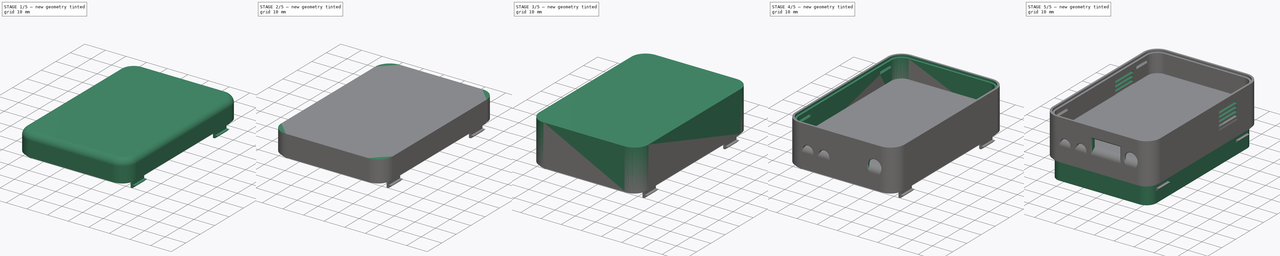
[diagram: build sequence overview — one tinted view per stage of 5, left to right]
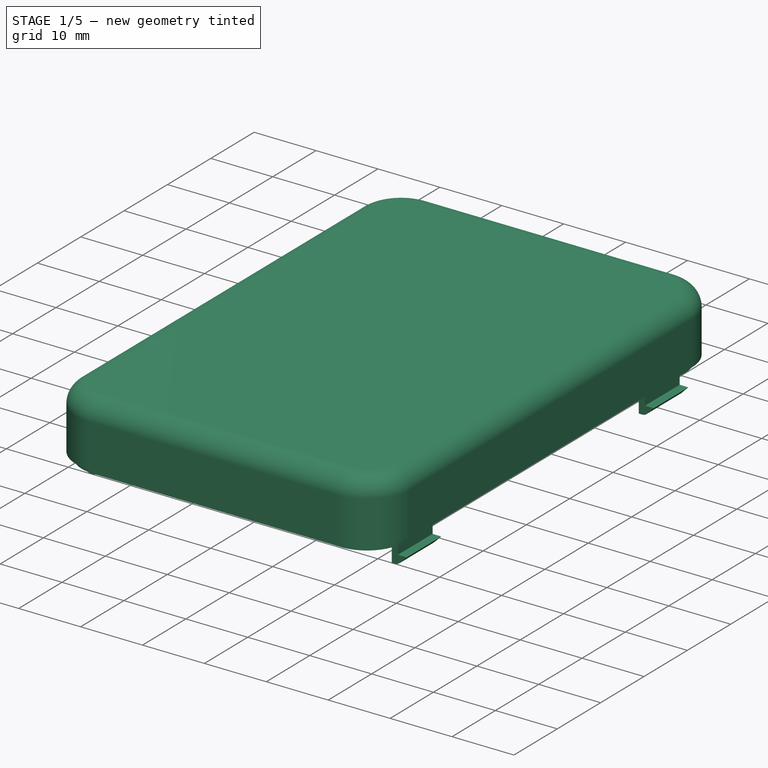
[diagram: stage 1 of 5 — iso view after this stage's code; geometry added in this stage tinted green]
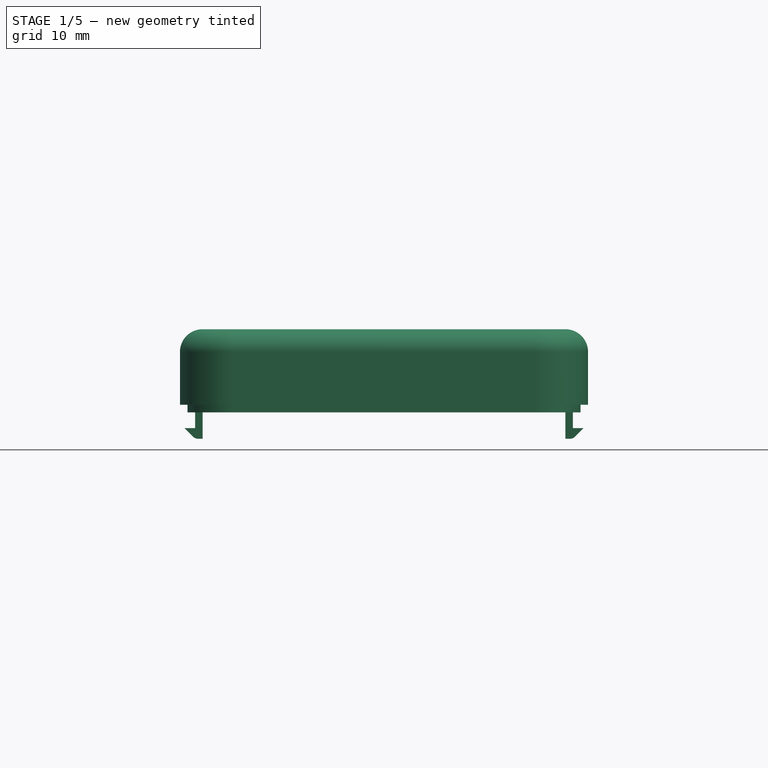
[diagram: stage 1 of 5 — front view after this stage's code; geometry added in this stage tinted green]
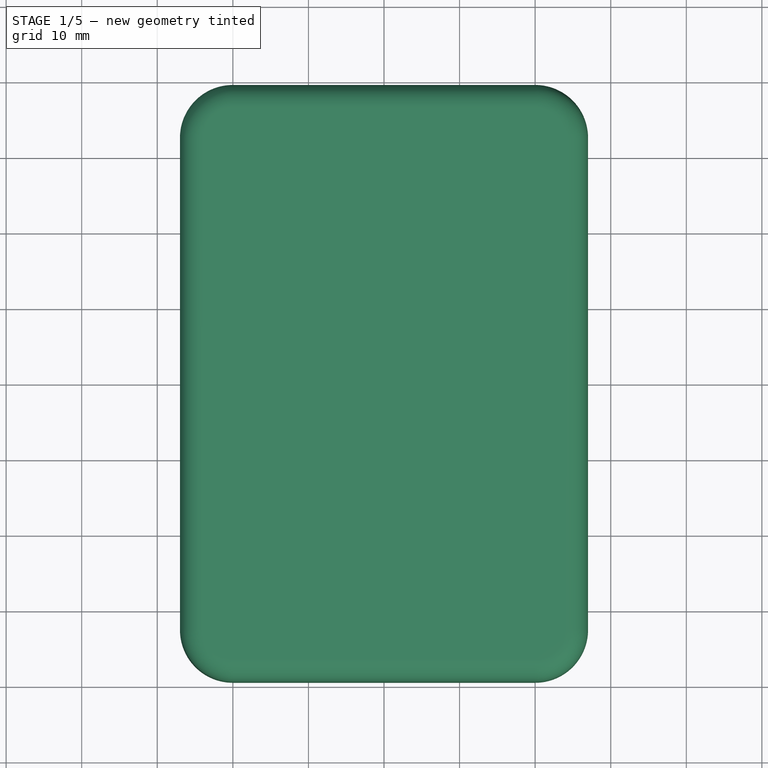
[diagram: stage 1 of 5 — top view after this stage's code; geometry added in this stage tinted green]
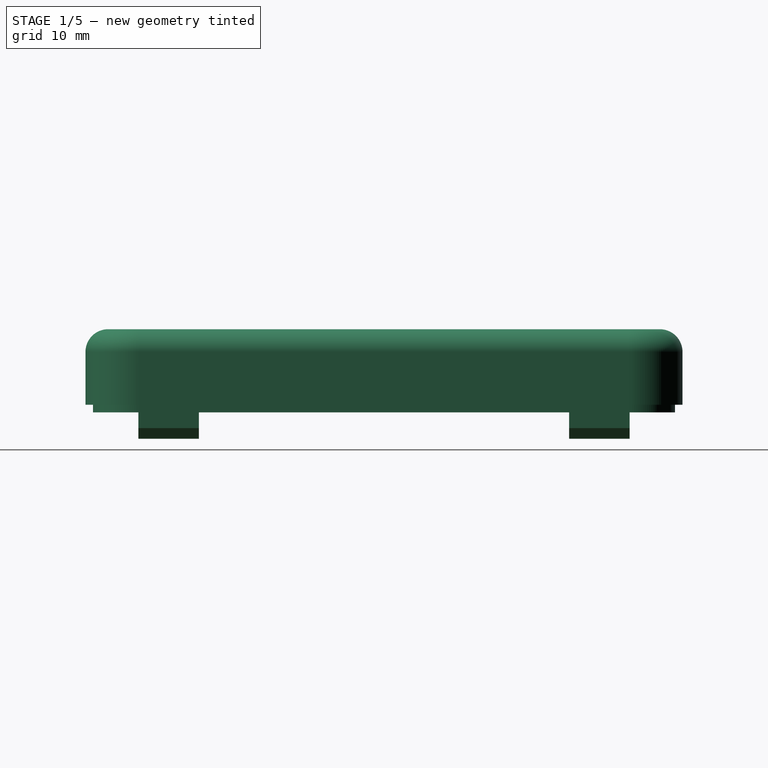
[diagram: stage 1 of 5 — right view after this stage's code; geometry added in this stage tinted green]
FCSTD DOCUMENT  (FreeCAD 1.0R39285 (Git))
Label: Model_Main
License: All rights reserved
LicenseURL: https://en.wikipedia.org/wiki/All_rights_reserved
objects: Sketcher::SketchObject×32, PartDesign::Fillet×31, PartDesign::Pad×16, PartDesign::Pocket×12, Part::Offset2D×10, Part::Extrusion×10, PartDesign::Body×8, PartDesign::FeatureBase×8, Part::Cut×7, PartDesign::Chamfer×2
note: 298 computed .brp shape members not serialized (recipe doc carries the construction recipe); baked Part::Feature solids carry a one-line shape summary decoded from their .brp

FEATURE [Sketcher::SketchObject] Sketch001
  ArcFitTolerance = 1e-06
  AttachmentSupport = -> [XY_Plane002]
  FullyConstrained = true
  MakeInternals = false
  MapMode = 5
  sketch-geometry (12):
    g0: LineSegment StartX=-25 StartY=32.5 StartZ=0 EndX=-25 EndY=-32.5 EndZ=0
    g1: LineSegment StartX=-20 StartY=-37.5 StartZ=0 EndX=20 EndY=-37.5 EndZ=0
    g2: LineSegment StartX=25 StartY=-32.5 StartZ=0 EndX=25 EndY=32.5 EndZ=0
    g3: LineSegment StartX=20 StartY=37.5 StartZ=0 EndX=-20 EndY=37.5 EndZ=0
    g4: ArcOfCircle CenterX=-20 CenterY=32.5 CenterZ=0 NormalX=0 NormalY=0 NormalZ=1 AngleXU=0 Radius=5 StartAngle=1.5708 EndAngle=3.14159
    g5: GeomPoint [constr] X=-25 Y=37.5 Z=0
    g6: ArcOfCircle CenterX=20 CenterY=32.5 CenterZ=0 NormalX=0 NormalY=0 NormalZ=1 AngleXU=0 Radius=5 StartAngle=-9e-16 EndAngle=1.5708
    g7: GeomPoint [constr] X=25 Y=37.5 Z=0
    g8: ArcOfCircle CenterX=-20 CenterY=-32.5 CenterZ=0 NormalX=0 NormalY=0 NormalZ=1 AngleXU=0 Radius=5 StartAngle=3.14159 EndAngle=4.71239
    g9: GeomPoint [constr] X=-25 Y=-37.5 Z=0
    g10: ArcOfCircle CenterX=20 CenterY=-32.5 CenterZ=0 NormalX=0 NormalY=0 NormalZ=1 AngleXU=0 Radius=5 StartAngle=4.71239 EndAngle=6.28319
    g11: GeomPoint [constr] X=25 Y=-37.5 Z=0
  constraints (27):
    c: Vertical(g0)
    c: Vertical(g2)
    c: Horizontal(g1)
    c: Horizontal(g3)
    c: Symmetric(g5,g11,g-1)
    c: DistanceX(g5,g7) = 50
    c: DistanceY(g9,g5) = 75
    c: PointOnObject(g5,g0)
    c: PointOnObject(g5,g3)
    c: Tangent(g0,g4) = -1.5708
    c: Tangent(g3,g4) = -1.5708
    c: PointOnObject(g7,g2)
    c: PointOnObject(g7,g3)
    c: Tangent(g2,g6) = -1.5708
    c: Tangent(g3,g6) = -1.5708
    c: PointOnObject(g9,g0)
    c: PointOnObject(g9,g1)
    c: Tangent(g0,g8) = -1.5708
    c: Tangent(g1,g8) = -1.5708
    c: PointOnObject(g11,g1)
    c: PointOnObject(g11,g2)
    c: Tangent(g1,g10) = -1.5708
    c: Tangent(g2,g10) = -1.5708
    c: Equal(g4,g6)
    c: Equal(g4,g8)
    c: Equal(g4,g10)
    c: Radius(g4) = 5
FEATURE [Part::Offset2D] Offset2D001
  Fill = false
  Intersection = false
  Join = 0
  Mode = 1
  SelfIntersection = false
  Source = -> Sketch001
  Value = 2
FEATURE [Part::Extrusion] Extrude001
  Base = -> Offset2D001
  Dir = (0,0,1)
  DirMode = 2
  FaceMakerClass = Part::FaceMakerBullseye
  FaceMakerMode = 3
  LengthFwd = 10
  LengthRev = 0
  Solid = true
  Symmetric = false
FEATURE [Part::Offset2D] Offset2D002
  Fill = false
  Intersection = false
  Join = 0
  Mode = 1
  SelfIntersection = false
  Source = -> Sketch001
  Value = 0
FEATURE [Part::Extrusion] Extrude002
  Base = -> Offset2D002
  Dir = (0,0,1)
  DirMode = 2
  FaceMakerClass = Part::FaceMakerBullseye
  FaceMakerMode = 3
  LengthFwd = 8
  LengthRev = 0
  Solid = true
  Symmetric = false
FEATURE [Part::Cut] Cut001
  Base = -> Extrude001
  Placement = pos=(0,0,20) rot=(0,0,1;0rad)
  Tool = -> Extrude002
FEATURE [PartDesign::FeatureBase] BaseFeature001
  BaseFeature = -> Cut001
  Suppressed = false
FEATURE [Sketcher::SketchObject] Sketch002
  ArcFitTolerance = 1e-06
  AttachmentSupport = -> [BaseFeature001]
  ExternalGeometry = -> [BaseFeature001]
  FullyConstrained = true
  MakeInternals = false
  MapMode = 5
  Placement = pos=(0,0,0) rot=(1,0,0;3.14159rad)
  sketch-geometry (8):
    g0: LineSegment StartX=-20 StartY=38.5 StartZ=0 EndX=20 EndY=38.5 EndZ=0
    g1: LineSegment StartX=-26 StartY=32.5 StartZ=0 EndX=-26 EndY=-32.5 EndZ=0
    g2: LineSegment StartX=26 StartY=32.5 StartZ=0 EndX=26 EndY=-32.5 EndZ=0
    g3: LineSegment StartX=-20 StartY=-38.5 StartZ=0 EndX=20 EndY=-38.5 EndZ=0
    g4: ArcOfCircle CenterX=-20 CenterY=32.5 CenterZ=0 NormalX=0 NormalY=0 NormalZ=1 AngleXU=0 Radius=6 StartAngle=1.5708 EndAngle=3.14159
    g5: ArcOfCircle CenterX=20 CenterY=32.5 CenterZ=0 NormalX=0 NormalY=0 NormalZ=1 AngleXU=0 Radius=6 StartAngle=-9e-16 EndAngle=1.5708
    g6: ArcOfCircle CenterX=20 CenterY=-32.5 CenterZ=0 NormalX=0 NormalY=0 NormalZ=1 AngleXU=0 Radius=6 StartAngle=4.71239 EndAngle=6.28319
    g7: ArcOfCircle CenterX=-20 CenterY=-32.5 CenterZ=0 NormalX=0 NormalY=0 NormalZ=1 AngleXU=0 Radius=6 StartAngle=3.14159 EndAngle=4.71239
  constraints (26):
    c: Horizontal(g0)
    c: Vertical(g1)
    c: Vertical(g2)
    c: Horizontal(g3)
    c: Horizontal(g1,g-4)
    c: Horizontal(g-7,g2)
    c: Horizontal(g1,g-10)
    c: Horizontal(g-8,g2)
    c: Vertical(g3,g-10)
    c: Vertical(g3,g-9)
    c: Vertical(g-5,g0)
    c: Vertical(g0,g-6)
    c: DistanceX(g1,g-4) = 1
    c: DistanceX(g-7,g2) = 1
    c: DistanceY(g-5,g0) = 1
    c: DistanceY(g3,g-10) = 1
    c: Coincident(g4,g0)
    c: Block(g4)
    c: Coincident(g5,g-6)
    c: Coincident(g5,g0)
    c: Block(g5)
    c: Coincident(g6,g-8)
    c: Coincident(g6,g3)
    c: Block(g6)
    c: Coincident(g7,g1)
    c: Block(g7)
FEATURE [PartDesign::Pad] Pad001
  BaseFeature = -> BaseFeature001
  Direction = (0,0,-1)
  Length = 1
  Length2 = 10
  Profile = -> Sketch002
  ReferenceAxis = -> Sketch002 [N_Axis]
  Refine = true
  Suppressed = false
  Type = 0
FEATURE [PartDesign::Body] Body002  label="Тело001"
  AllowCompound = false
  BaseFeature = -> Cut001
  Group = -> [BaseFeature001,Sketch002,Pad001]
  Origin = -> Origin002
  Tip = -> Pad001
FEATURE [Part::Offset2D] Offset2D003
  Fill = false
  Intersection = false
  Join = 0
  Mode = 1
  SelfIntersection = false
  Source = -> Sketch002
  Value = -1
FEATURE [Part::Extrusion] Extrude003
  Base = -> Offset2D003
  Dir = (0,0,1)
  DirMode = 2
  FaceMakerClass = Part::FaceMakerBullseye
  FaceMakerMode = 3
  LengthFwd = -10
  LengthRev = 0
  Solid = true
  Symmetric = false
FEATURE [Part::Cut] Cut003
  Base = -> Body002
  Tool = -> Extrude003
FEATURE [PartDesign::FeatureBase] BaseFeature003
  BaseFeature = -> Cut003
  Suppressed = false
FEATURE [PartDesign::Fillet] Fillet
  Base = -> BaseFeature003 [Edge4]
  BaseFeature = -> BaseFeature003
  Radius = 3
  Refine = true
  SupportTransform = false
  Suppressed = false
  UseAllEdges = false
FEATURE [PartDesign::Body] Body004  label="Корпус"
  AllowCompound = false
  BaseFeature = -> Cut
  Group = -> [BaseFeature004,Fillet001]
  Origin = -> Origin004
  Tip = -> Fillet001
FEATURE [Sketcher::SketchObject] Sketch005
  ArcFitTolerance = 1e-06
  AttachmentSupport = -> [Fillet]
  ExternalGeometry = -> [Fillet]
  FullyConstrained = true
  MakeInternals = false
  MapMode = 5
  Placement = pos=(0,0,8) rot=(1,0,0;3.14159rad)
  sketch-geometry (16):
    g0: LineSegment StartX=-25 StartY=32.5 StartZ=0 EndX=-25 EndY=24.5 EndZ=0
    g1: LineSegment StartX=-25 StartY=24.5 StartZ=0 EndX=-24 EndY=24.5 EndZ=0
    g2: LineSegment StartX=-24 StartY=24.5 StartZ=0 EndX=-24 EndY=32.5 EndZ=0
    g3: LineSegment StartX=-24 StartY=32.5 StartZ=0 EndX=-25 EndY=32.5 EndZ=0
    g4: LineSegment StartX=25 StartY=32.5 StartZ=0 EndX=24 EndY=32.5 EndZ=0
    g5: LineSegment StartX=24 StartY=32.5 StartZ=0 EndX=24 EndY=24.5 EndZ=0
    g6: LineSegment StartX=24 StartY=24.5 StartZ=0 EndX=25 EndY=24.5 EndZ=0
    g7: LineSegment StartX=25 StartY=24.5 StartZ=0 EndX=25 EndY=32.5 EndZ=0
    g8: LineSegment StartX=-25 StartY=-32.5 StartZ=0 EndX=-24 EndY=-32.5 EndZ=0
    g9: LineSegment StartX=-24 StartY=-32.5 StartZ=0 EndX=-24 EndY=-24.5 EndZ=0
    g10: LineSegment StartX=-24 StartY=-24.5 StartZ=0 EndX=-25 EndY=-24.5 EndZ=0
    g11: LineSegment StartX=-25 StartY=-24.5 StartZ=0 EndX=-25 EndY=-32.5 EndZ=0
    g12: LineSegment StartX=25 StartY=-32.5 StartZ=0 EndX=25 EndY=-24.5 EndZ=0
    g13: LineSegment StartX=25 StartY=-24.5 StartZ=0 EndX=24 EndY=-24.5 EndZ=0
    g14: LineSegment StartX=24 StartY=-24.5 StartZ=0 EndX=24 EndY=-32.5 EndZ=0
    g15: LineSegment StartX=24 StartY=-32.5 StartZ=0 EndX=25 EndY=-32.5 EndZ=0
  constraints (44):
    c: Coincident(g0,g1)
    c: Coincident(g1,g2)
    c: Coincident(g2,g3)
    c: Coincident(g3,g0)
    c: Vertical(g0)
    c: Vertical(g2)
    c: Horizontal(g1)
    c: Horizontal(g3)
    c: Distance(g0,g2) = 1
    c: Distance(g1,g3) = 8
    c: Coincident(g0,g-4)
    c: Coincident(g4,g5)
    c: Coincident(g5,g6)
    c: Coincident(g6,g7)
    c: Coincident(g7,g4)
    c: Horizontal(g4)
    c: Horizontal(g6)
    c: Vertical(g5)
    c: Vertical(g7)
    c: Distance(g5,g7) = 1
    c: Distance(g4,g6) = 8
    c: Coincident(g4,g-7)
    c: Coincident(g8,g9)
    c: Coincident(g9,g10)
    c: Coincident(g10,g11)
    c: Coincident(g11,g8)
    c: Horizontal(g8)
    c: Horizontal(g10)
    c: Vertical(g9)
    c: Vertical(g11)
    c: Distance(g9,g11) = 1
    c: Distance(g8,g10) = 8
    c: Coincident(g8,g-8)
    c: Coincident(g12,g13)
    c: Coincident(g13,g14)
    c: Coincident(g14,g15)
    c: Coincident(g15,g12)
    c: Vertical(g12)
    c: Vertical(g14)
    c: Horizontal(g13)
    c: Horizontal(g15)
    c: Distance(g12,g14) = 1
    c: Distance(g13,g15) = 8
    c: Coincident(g12,g-10)
FEATURE [PartDesign::Pad] Pad002
  BaseFeature = -> Fillet
  Direction = (0,0,-1)
  Length = 12.5
  Length2 = 10
  Profile = -> Sketch005
  ReferenceAxis = -> Sketch005 [N_Axis]
  Refine = true
  Suppressed = false
  Type = 0
FEATURE [Sketcher::SketchObject] Sketch006
  ArcFitTolerance = 1e-06
  AttachmentSupport = -> [Pad002]
  ExternalGeometry = -> [Pad002]
  FullyConstrained = true
  MakeInternals = false
  MapMode = 5
  Placement = pos=(0,32.5,0) rot=(0,0.707107,0.707107;3.14159rad)
  sketch-geometry (6):
    g0: LineSegment StartX=-25 StartY=-4.5 StartZ=0 EndX=-26.4142 EndY=-3.08579 EndZ=0
    g1: LineSegment StartX=-26.4142 StartY=-3.08579 StartZ=0 EndX=-25 EndY=-3.08579 EndZ=0
    g2: LineSegment StartX=-25 StartY=-3.08579 StartZ=0 EndX=-25 EndY=-4.5 EndZ=0
    g3: LineSegment StartX=25 StartY=-4.5 StartZ=0 EndX=26.4142 EndY=-3.08579 EndZ=0
    g4: LineSegment StartX=26.4142 StartY=-3.08579 StartZ=0 EndX=25 EndY=-3.08579 EndZ=0
    g5: LineSegment StartX=25 StartY=-3.08579 StartZ=0 EndX=25 EndY=-4.5 EndZ=0
  constraints (16):
    c: Distance(g0) = 2
    c: Angle(g-1,g0) = 2.35619
    c: Coincident(g0,g-3)
    c: Coincident(g1,g0)
    c: Horizontal(g1)
    c: Coincident(g2,g1)
    c: Coincident(g2,g0)
    c: Vertical(g2)
    c: Distance(g3) = 2
    c: Angle(g-1,g3) = 0.785398
    c: Coincident(g3,g-4)
    c: Coincident(g4,g3)
    c: Horizontal(g4)
    c: Coincident(g5,g4)
    c: Coincident(g5,g3)
    c: Vertical(g5)
FEATURE [PartDesign::Pad] Pad003
  BaseFeature = -> Pad002
  Direction = (0,1,-2e-16)
  Length = 8
  Length2 = 10
  Profile = -> Sketch006
  ReferenceAxis = -> Sketch006 [N_Axis]
  Refine = true
  Reversed = true
  Suppressed = false
  Type = 0
FEATURE [Sketcher::SketchObject] Sketch007
  ArcFitTolerance = 1e-06
  AttachmentSupport = -> [Pad003]
  ExternalGeometry = -> [Pad003]
  FullyConstrained = true
  MakeInternals = false
  MapMode = 5
  Placement = pos=(0,-32.5,0) rot=(1,0,0;1.5708rad)
  sketch-geometry (6):
    g0: LineSegment StartX=25 StartY=-4.5 StartZ=0 EndX=26.4142 EndY=-3.08579 EndZ=0
    g1: LineSegment StartX=26.4142 StartY=-3.08579 StartZ=0 EndX=25 EndY=-3.08579 EndZ=0
    g2: LineSegment StartX=25 StartY=-3.08579 StartZ=0 EndX=25 EndY=-4.5 EndZ=0
    g3: LineSegment StartX=-25 StartY=-4.5 StartZ=0 EndX=-26.4142 EndY=-3.08579 EndZ=0
    g4: LineSegment StartX=-26.4142 StartY=-3.08579 StartZ=0 EndX=-25 EndY=-3.08579 EndZ=0
    g5: LineSegment StartX=-25 StartY=-3.08579 StartZ=0 EndX=-25 EndY=-4.5 EndZ=0
  constraints (16):
    c: Distance(g0) = 2
    c: Angle(g-1,g0) = 0.785398
    c: Coincident(g0,g-3)
    c: Coincident(g1,g0)
    c: Horizontal(g1)
    c: Coincident(g2,g1)
    c: Coincident(g2,g0)
    c: Vertical(g2)
    c: Distance(g3) = 2
    c: Angle(g-1,g3) = 2.35619
    c: Coincident(g3,g-4)
    c: Coincident(g4,g3)
    c: Horizontal(g4)
    c: Coincident(g5,g4)
    c: Coincident(g5,g3)
    c: Vertical(g5)
FEATURE [PartDesign::Pad] Pad004
  BaseFeature = -> Pad003
  Direction = (0,-1,2e-16)
  Length = 8
  Length2 = 10
  Profile = -> Sketch007
  ReferenceAxis = -> Sketch007 [N_Axis]
  Refine = true
  Reversed = true
  Suppressed = false
  Type = 0
FEATURE [Sketcher::SketchObject] Sketch008
  ArcFitTolerance = 1e-06
  AttachmentSupport = -> [Pad004]
  ExternalGeometry = -> [Pad004]
  FullyConstrained = true
  MakeInternals = false
  MapMode = 5
  Placement = pos=(0,0,8) rot=(1,0,0;3.14159rad)
  sketch-geometry (20):
    g0: LineSegment StartX=-22.5 StartY=31.5 StartZ=0 EndX=-22.5 EndY=4.5 EndZ=0
    g1: LineSegment StartX=-18.5 StartY=0.5 StartZ=0 EndX=18.5 EndY=0.5 EndZ=0
    g2: LineSegment StartX=22.5 StartY=4.5 StartZ=0 EndX=22.5 EndY=31.5 EndZ=0
    g3: LineSegment StartX=18.5 StartY=35.5 StartZ=0 EndX=-18.5 EndY=35.5 EndZ=0
    g4: ArcOfCircle CenterX=-18.5 CenterY=31.5 CenterZ=0 NormalX=0 NormalY=0 NormalZ=1 AngleXU=0 Radius=4 StartAngle=1.5708 EndAngle=3.14159
    g5: GeomPoint [constr] X=-22.5 Y=35.5 Z=0
    g6: ArcOfCircle CenterX=18.5 CenterY=31.5 CenterZ=0 NormalX=0 NormalY=0 NormalZ=1 AngleXU=0 Radius=4 StartAngle=0 EndAngle=1.5708
    g7: GeomPoint [constr] X=22.5 Y=35.5 Z=0
    g8: ArcOfCircle CenterX=18.5 CenterY=4.5 CenterZ=0 NormalX=0 NormalY=0 NormalZ=1 AngleXU=0 Radius=4 StartAngle=4.71239 EndAngle=6.28319
    g9: GeomPoint [constr] X=22.5 Y=0.5 Z=0
    g10: ArcOfCircle CenterX=-18.5 CenterY=4.5 CenterZ=0 NormalX=0 NormalY=0 NormalZ=1 AngleXU=0 Radius=4 StartAngle=3.14159 EndAngle=4.71239
    g11: GeomPoint [constr] X=-22.5 Y=0.5 Z=0
    g12: LineSegment StartX=-18.5 StartY=33.5 StartZ=0 EndX=18.5 EndY=33.5 EndZ=0
    g13: LineSegment StartX=20.5 StartY=31.5 StartZ=0 EndX=20.5 EndY=4.5 EndZ=0
    g14: LineSegment StartX=18.5 StartY=2.5 StartZ=0 EndX=-18.5 EndY=2.5 EndZ=0
    g15: LineSegment StartX=-20.5 StartY=4.5 StartZ=0 EndX=-20.5 EndY=31.5 EndZ=0
    g16: ArcOfCircle CenterX=-18.5 CenterY=4.5 CenterZ=0 NormalX=0 NormalY=0 NormalZ=1 AngleXU=0 Radius=2 StartAngle=3.14159 EndAngle=4.71239
    g17: ArcOfCircle CenterX=18.5 CenterY=4.5 CenterZ=0 NormalX=0 NormalY=0 NormalZ=1 AngleXU=0 Radius=2 StartAngle=4.71239 EndAngle=6.28319
    g18: ArcOfCircle CenterX=18.5 CenterY=31.5 CenterZ=0 NormalX=0 NormalY=0 NormalZ=1 AngleXU=0 Radius=2 StartAngle=0 EndAngle=1.5708
    g19: ArcOfCircle CenterX=-17.6292 CenterY=30.6292 CenterZ=0 NormalX=0 NormalY=0 NormalZ=1 AngleXU=0 Radius=3 StartAngle=1.86531 EndAngle=2.84708
  constraints (52):
    c: Vertical(g0)
    c: Vertical(g2)
    c: Horizontal(g1)
    c: Distance(g5,g7) = 45
    c: Distance(g11,g5) = 35
    c: Symmetric(g5,g7,g-2)
    c: PointOnObject(g5,g0)
    c: PointOnObject(g5,g3)
    c: Tangent(g0,g4) = -1.5708
    c: Tangent(g3,g4) = -1.5708
    c: PointOnObject(g7,g2)
    c: PointOnObject(g7,g3)
    c: Tangent(g2,g6) = -1.5708
    c: Tangent(g3,g6) = -1.5708
    c: PointOnObject(g9,g1)
    c: PointOnObject(g9,g2)
    c: Tangent(g1,g8) = -1.5708
    c: Tangent(g2,g8) = -1.5708
    c: PointOnObject(g11,g0)
    c: PointOnObject(g11,g1)
    c: Tangent(g0,g10) = -1.5708
    c: Tangent(g1,g10) = -1.5708
    c: Equal(g4,g6)
    c: Equal(g4,g8)
    c: Equal(g4,g10)
    c: Radius(g4) = 4
    c: DistanceY(g3,g-3) = 2
    c: Horizontal(g12)
    c: Vertical(g13)
    c: Horizontal(g14)
    c: Vertical(g15)
    c: Horizontal(g15,g0)
    c: Horizontal(g13,g2)
    c: Horizontal(g15,g0)
    c: Horizontal(g13,g2)
    c: Vertical(g3,g12)
    c: Vertical(g14,g1)
    c: Vertical(g14,g1)
    c: Coincident(g16,g10)
    c: Coincident(g16,g15)
    c: Coincident(g16,g14)
    c: Coincident(g17,g8)
    c: Coincident(g17,g13)
    c: Coincident(g17,g14)
    c: Coincident(g18,g6)
    c: Coincident(g18,g12)
    c: Coincident(g18,g13)
    c: DistanceY(g12,g3) = 2
    c: Vertical(g12,g3)
    c: Coincident(g19,g12)
    c: Coincident(g19,g15)
    c: Radius(g19) = 3
FEATURE [PartDesign::Pocket] Pocket
  BaseFeature = -> Pad004
  Direction = (0,0,1)
  Length = 1
  Length2 = 5
  Profile = -> Sketch008
  ReferenceAxis = -> Sketch008 [N_Axis]
  Refine = true
  Suppressed = false
  Type = 0
FEATURE [PartDesign::Fillet] Fillet002
  Base = -> Pocket [Edge188]
  BaseFeature = -> Pocket
  Radius = 1
  Refine = true
  SupportTransform = false
  Suppressed = false
  UseAllEdges = false
FEATURE [PartDesign::Fillet] Fillet003
  Base = -> Fillet002 [Edge130]
  BaseFeature = -> Fillet002
  Radius = 1
  Refine = true
  SupportTransform = false
  Suppressed = false
  UseAllEdges = false
FEATURE [PartDesign::Fillet] Fillet004
  Base = -> Fillet003 [Edge135]
  BaseFeature = -> Fillet003
  Radius = 1
  Refine = true
  SupportTransform = false
  Suppressed = false
  UseAllEdges = false
FEATURE [PartDesign::Fillet] Fillet005
  Base = -> Fillet004 [Edge157]
  BaseFeature = -> Fillet004
  Radius = 1
  Refine = true
  SupportTransform = false
  Suppressed = false
  UseAllEdges = false
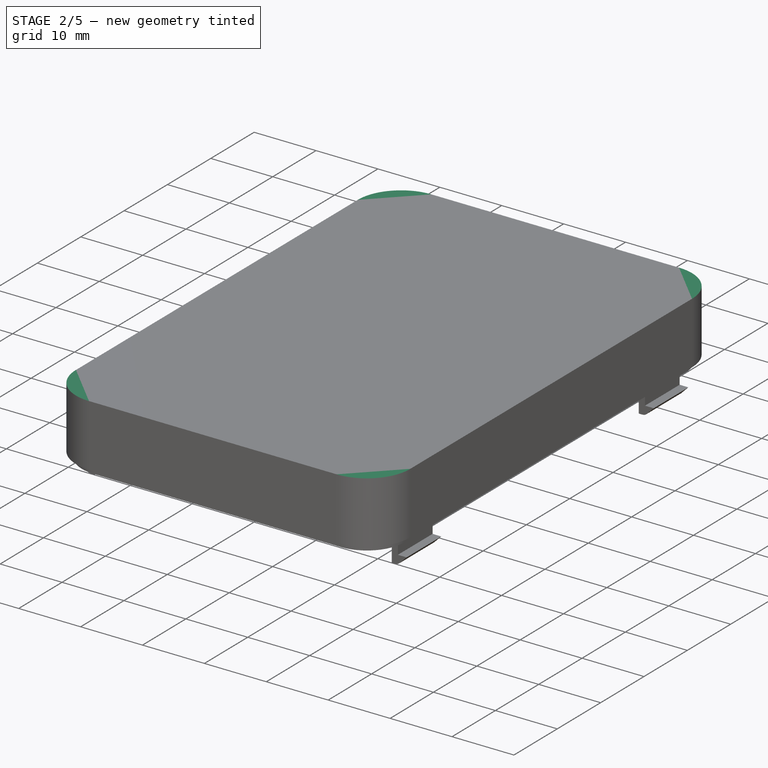
[diagram: stage 2 of 5 — iso view after this stage's code; geometry added in this stage tinted green]
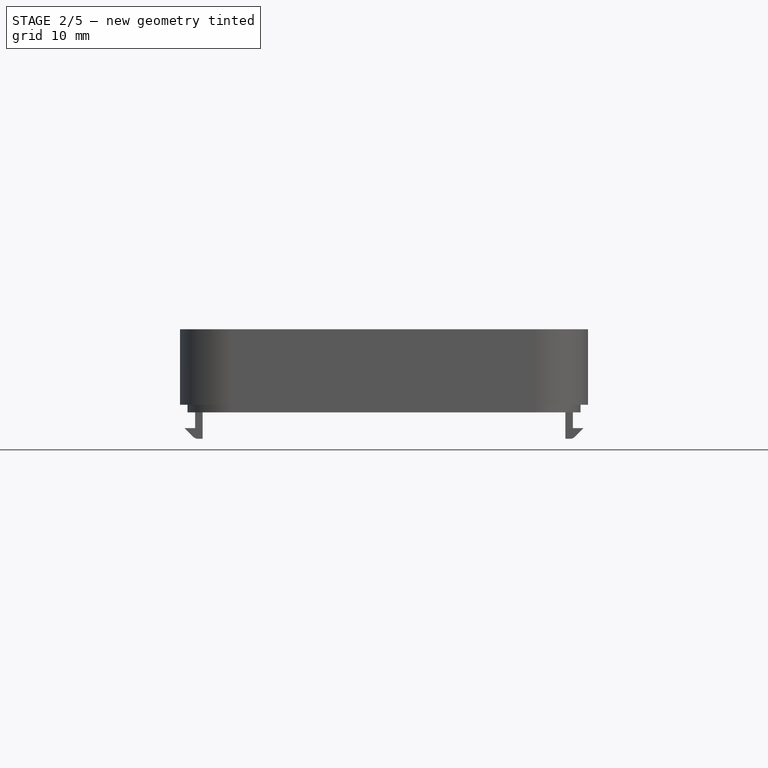
[diagram: stage 2 of 5 — front view after this stage's code; geometry added in this stage tinted green]
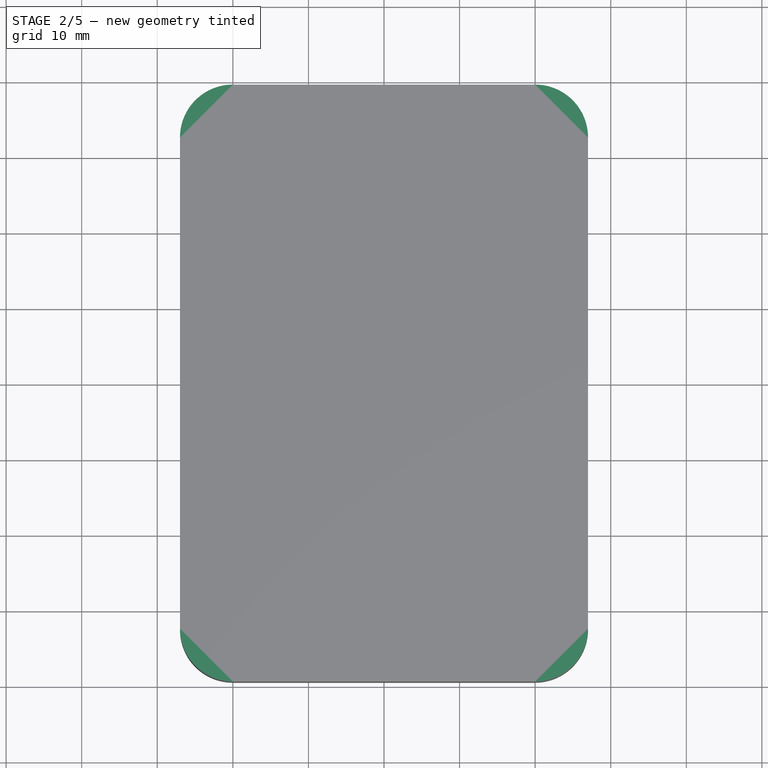
[diagram: stage 2 of 5 — top view after this stage's code; geometry added in this stage tinted green]
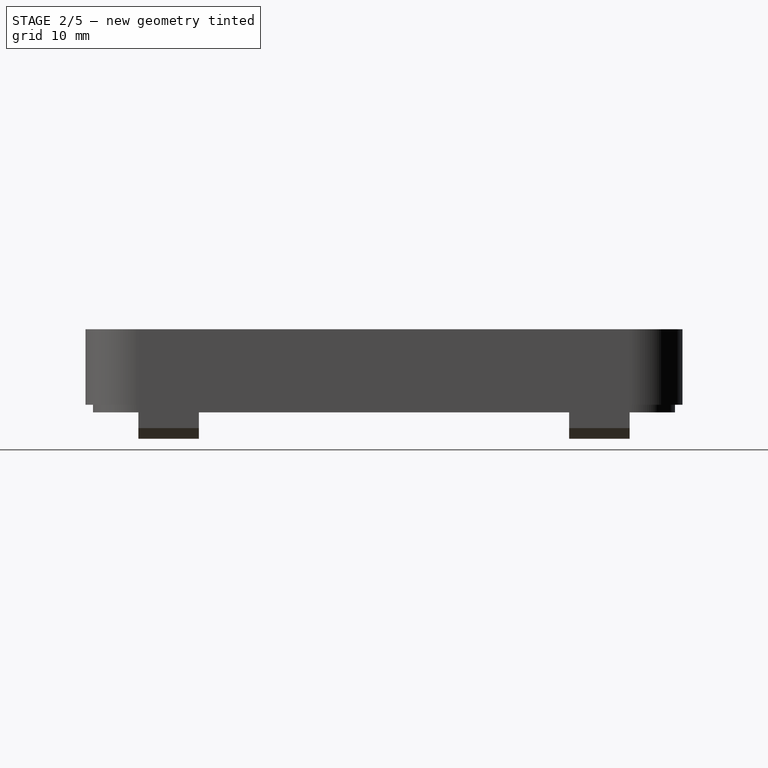
[diagram: stage 2 of 5 — right view after this stage's code; geometry added in this stage tinted green]
FEATURE [PartDesign::Fillet] Fillet006
  Base = -> Fillet005 [Edge29]
  BaseFeature = -> Fillet005
  Radius = 1
  Refine = true
  SupportTransform = false
  Suppressed = false
  UseAllEdges = false
FEATURE [PartDesign::Fillet] Fillet007
  Base = -> Fillet006 [Edge13]
  BaseFeature = -> Fillet006
  Radius = 1
  Refine = true
  SupportTransform = false
  Suppressed = false
  UseAllEdges = false
FEATURE [PartDesign::Fillet] Fillet008
  Base = -> Fillet007 [Edge24]
  BaseFeature = -> Fillet007
  Radius = 1
  Refine = true
  SupportTransform = false
  Suppressed = false
  UseAllEdges = false
FEATURE [PartDesign::Fillet] Fillet009
  Base = -> Fillet008 [Edge8]
  BaseFeature = -> Fillet008
  Radius = 1
  Refine = true
  SupportTransform = false
  Suppressed = false
  UseAllEdges = false
FEATURE [Sketcher::SketchObject] Sketch009
  ArcFitTolerance = 1e-06
  AttachmentSupport = -> [XY_Plane007]
  FullyConstrained = true
  MakeInternals = false
  MapMode = 5
  sketch-geometry (12):
    g0: LineSegment StartX=-25 StartY=32.5 StartZ=0 EndX=-25 EndY=-32.5 EndZ=0
    g1: LineSegment StartX=-20 StartY=-37.5 StartZ=0 EndX=20 EndY=-37.5 EndZ=0
    g2: LineSegment StartX=25 StartY=-32.5 StartZ=0 EndX=25 EndY=32.5 EndZ=0
    g3: LineSegment StartX=20 StartY=37.5 StartZ=0 EndX=-20 EndY=37.5 EndZ=0
    g4: ArcOfCircle CenterX=-20 CenterY=32.5 CenterZ=0 NormalX=0 NormalY=0 NormalZ=1 AngleXU=0 Radius=5 StartAngle=1.5708 EndAngle=3.14159
    g5: GeomPoint [constr] X=-25 Y=37.5 Z=0
    g6: ArcOfCircle CenterX=20 CenterY=32.5 CenterZ=0 NormalX=0 NormalY=0 NormalZ=1 AngleXU=0 Radius=5 StartAngle=-9e-16 EndAngle=1.5708
    g7: GeomPoint [constr] X=25 Y=37.5 Z=0
    g8: ArcOfCircle CenterX=-20 CenterY=-32.5 CenterZ=0 NormalX=0 NormalY=0 NormalZ=1 AngleXU=0 Radius=5 StartAngle=3.14159 EndAngle=4.71239
    g9: GeomPoint [constr] X=-25 Y=-37.5 Z=0
    g10: ArcOfCircle CenterX=20 CenterY=-32.5 CenterZ=0 NormalX=0 NormalY=0 NormalZ=1 AngleXU=0 Radius=5 StartAngle=4.71239 EndAngle=6.28319
    g11: GeomPoint [constr] X=25 Y=-37.5 Z=0
  constraints (27):
    c: Vertical(g0)
    c: Vertical(g2)
    c: Horizontal(g1)
    c: Horizontal(g3)
    c: Symmetric(g5,g11,g-1)
    c: DistanceX(g5,g7) = 50
    c: DistanceY(g9,g5) = 75
    c: PointOnObject(g5,g0)
    c: PointOnObject(g5,g3)
    c: Tangent(g0,g4) = -1.5708
    c: Tangent(g3,g4) = -1.5708
    c: PointOnObject(g7,g2)
    c: PointOnObject(g7,g3)
    c: Tangent(g2,g6) = -1.5708
    c: Tangent(g3,g6) = -1.5708
    c: PointOnObject(g9,g0)
    c: PointOnObject(g9,g1)
    c: Tangent(g0,g8) = -1.5708
    c: Tangent(g1,g8) = -1.5708
    c: PointOnObject(g11,g1)
    c: PointOnObject(g11,g2)
    c: Tangent(g1,g10) = -1.5708
    c: Tangent(g2,g10) = -1.5708
    c: Equal(g4,g6)
    c: Equal(g4,g8)
    c: Equal(g4,g10)
    c: Radius(g4) = 5
FEATURE [Part::Offset2D] Offset2D007
  Fill = false
  Intersection = false
  Join = 0
  Mode = 1
  SelfIntersection = false
  Source = -> Sketch009
  Value = 2
FEATURE [Part::Extrusion] Extrude007
  Base = -> Offset2D007
  Dir = (0,0,1)
  DirMode = 2
  FaceMakerClass = Part::FaceMakerBullseye
  FaceMakerMode = 3
  LengthFwd = 10
  LengthRev = 0
  Solid = true
  Symmetric = false
FEATURE [Part::Offset2D] Offset2D008
  Fill = false
  Intersection = false
  Join = 0
  Mode = 1
  SelfIntersection = false
  Source = -> Sketch009
  Value = 0
FEATURE [Part::Extrusion] Extrude008
  Base = -> Offset2D008
  Dir = (0,0,1)
  DirMode = 2
  FaceMakerClass = Part::FaceMakerBullseye
  FaceMakerMode = 3
  LengthFwd = 8
  LengthRev = 0
  Solid = true
  Symmetric = false
FEATURE [Part::Cut] Cut004
  Base = -> Extrude007
  Placement = pos=(0,0,20) rot=(0,0,1;0rad)
  Tool = -> Extrude008
FEATURE [PartDesign::FeatureBase] BaseFeature005
  BaseFeature = -> Cut004
  Suppressed = false
FEATURE [PartDesign::Pad] Pad005
  BaseFeature = -> BaseFeature005
  Direction = (0,0,-1)
  Length = 1
  Length2 = 10
  Profile = -> Sketch010
  ReferenceAxis = -> Sketch010 [N_Axis]
  Refine = true
  Suppressed = false
  Type = 0
FEATURE [Sketcher::SketchObject] Sketch020
  ArcFitTolerance = 1e-06
  AttachmentSupport = -> [Fillet009]
  ExternalGeometry = -> [Fillet009]
  FullyConstrained = true
  MakeInternals = false
  MapMode = 5
  Placement = pos=(0,39.5,0) rot=(0,0.707107,0.707107;3.14159rad)
  sketch-geometry (6):
    g0: LineSegment StartX=-4.35 StartY=4.95 StartZ=0 EndX=-4.35 EndY=2.05 EndZ=0
    g1: LineSegment StartX=-4.35 StartY=2.05 StartZ=0 EndX=4.35 EndY=2.05 EndZ=0
    g2: LineSegment StartX=4.35 StartY=2.05 StartZ=0 EndX=4.35 EndY=4.95 EndZ=0
    g3: LineSegment StartX=4.35 StartY=4.95 StartZ=0 EndX=-4.35 EndY=4.95 EndZ=0
    g4: LineSegment [constr] StartX=-20 StartY=7 StartZ=0 EndX=-4.35 EndY=4.95 EndZ=0
    g5: LineSegment [constr] StartX=4.35 StartY=2.05 StartZ=0 EndX=20 EndY=2e-16 EndZ=0
  constraints (15):
    c: Coincident(g0,g1)
    c: Coincident(g1,g2)
    c: Coincident(g2,g3)
    c: Coincident(g3,g0)
    c: Vertical(g0)
    c: Vertical(g2)
    c: Horizontal(g1)
    c: Distance(g0,g2) = 8.7
    c: Distance(g1,g3) = 2.9
    c: Symmetric(g2,g0,g-2)
    c: Coincident(g4,g-3)
    c: Coincident(g4,g0)
    c: Coincident(g5,g1)
    c: Coincident(g5,g-4)
    c: Equal(g4,g5)
FEATURE [PartDesign::Pocket] Pocket005
  BaseFeature = -> Fillet009
  Direction = (0,-1,2e-16)
  Length = 5
  Length2 = 5
  Profile = -> Sketch020
  ReferenceAxis = -> Sketch020 [N_Axis]
  Refine = true
  Suppressed = false
  Type = 0
FEATURE [PartDesign::Chamfer] Chamfer001
  Angle = 45
  Base = -> Pocket005 [Edge176,Edge174,Edge172,Edge169]
  BaseFeature = -> Pocket005
  ChamferType = 0
  FlipDirection = false
  Refine = true
  Size = 1
  Size2 = 1
  SupportTransform = false
  Suppressed = false
  UseAllEdges = false
FEATURE [PartDesign::Body] Body007  label="Корпус001"
  AllowCompound = false
  BaseFeature = -> Cut006
  Group = -> [BaseFeature007,Sketch015,Pocket002,Fillet019,Fillet020,Fillet021,Sketch016,Pad009,Sketch017,Pad010,Fillet022,Fillet023,Fillet024,Sketch018,Pocket003,Fillet025,Fillet026,Sketch019,Fillet027,Pocket004,Chamfer,Sketch021,Pocket006,Sketch022,Pocket007,Fillet028,Sketch023,Pocket008,Sketch024,Pocket009,Fillet029,Fillet030,Sketch025,Pad011]
  Origin = -> Origin007
  Tip = -> Pad011
FEATURE [Sketcher::SketchObject] Sketch026
  ArcFitTolerance = 1e-06
  AttachmentSupport = -> [Chamfer001]
  ExternalGeometry = -> [Chamfer001]
  FullyConstrained = true
  MakeInternals = false
  MapMode = 5
  Placement = pos=(0,0,8) rot=(1,0,0;3.14159rad)
  sketch-geometry (12):
    g0: LineSegment StartX=-22.5 StartY=-5.5 StartZ=0 EndX=-22.5 EndY=-31.5 EndZ=0
    g1: LineSegment StartX=-18.5 StartY=-35.5 StartZ=0 EndX=18.5 EndY=-35.5 EndZ=0
    g2: LineSegment StartX=22.5 StartY=-31.5 StartZ=0 EndX=22.5 EndY=-5.5 EndZ=0
    g3: LineSegment StartX=18.5 StartY=-1.5 StartZ=0 EndX=-18.5 EndY=-1.5 EndZ=0
    g4: ArcOfCircle CenterX=-18.5 CenterY=-5.5 CenterZ=0 NormalX=0 NormalY=0 NormalZ=1 AngleXU=0 Radius=4 StartAngle=1.5708 EndAngle=3.14159
    g5: GeomPoint [constr] X=-22.5 Y=-1.5 Z=0
    g6: ArcOfCircle CenterX=18.5 CenterY=-5.5 CenterZ=0 NormalX=0 NormalY=0 NormalZ=1 AngleXU=0 Radius=4 StartAngle=0 EndAngle=1.5708
    g7: GeomPoint [constr] X=22.5 Y=-1.5 Z=0
    g8: ArcOfCircle CenterX=18.5 CenterY=-31.5 CenterZ=0 NormalX=0 NormalY=0 NormalZ=1 AngleXU=0 Radius=4 StartAngle=4.71239 EndAngle=6.28319
    g9: GeomPoint [constr] X=22.5 Y=-35.5 Z=0
    g10: ArcOfCircle CenterX=-18.5 CenterY=-31.5 CenterZ=0 NormalX=0 NormalY=0 NormalZ=1 AngleXU=0 Radius=4 StartAngle=3.14159 EndAngle=4.71239
    g11: GeomPoint [constr] X=-22.5 Y=-35.5 Z=0
  constraints (27):
    c: Vertical(g0)
    c: Vertical(g2)
    c: Horizontal(g1)
    c: Symmetric(g5,g7,g-2)
    c: DistanceY(g-6,g11) = 2
    c: Vertical(g5,g-5)
    c: DistanceY(g5,g-7) = 2
    c: PointOnObject(g5,g0)
    c: PointOnObject(g5,g3)
    c: Tangent(g0,g4) = -1.5708
    c: Tangent(g3,g4) = -1.5708
    c: PointOnObject(g7,g2)
    c: PointOnObject(g7,g3)
    c: Tangent(g2,g6) = -1.5708
    c: Tangent(g3,g6) = -1.5708
    c: PointOnObject(g9,g1)
    c: PointOnObject(g9,g2)
    c: Tangent(g1,g8) = -1.5708
    c: Tangent(g2,g8) = -1.5708
    c: PointOnObject(g11,g0)
    c: PointOnObject(g11,g1)
    c: Tangent(g0,g10) = -1.5708
    c: Tangent(g1,g10) = -1.5708
    c: Equal(g4,g10)
    c: Equal(g10,g8)
    c: Equal(g8,g6)
    c: Radius(g4) = 4
FEATURE [PartDesign::Pocket] Pocket010
  BaseFeature = -> Chamfer001
  Direction = (0,0,1)
  Length = 1
  Length2 = 5
  Profile = -> Sketch026
  ReferenceAxis = -> Sketch026 [N_Axis]
  Refine = true
  Suppressed = false
  Type = 0
FEATURE [Sketcher::SketchObject] Sketch027
  ArcFitTolerance = 1e-06
  AttachmentSupport = -> [Pocket010]
  ExternalGeometry = -> [Pocket010]
  FullyConstrained = true
  MakeInternals = false
  MapMode = 5
  Placement = pos=(0,0,8) rot=(1,0,0;3.14159rad)
  sketch-geometry (12):
    g0: LineSegment StartX=-19.5 StartY=30.5 StartZ=0 EndX=-19.5 EndY=5.5 EndZ=0
    g1: LineSegment StartX=-17.5 StartY=3.5 StartZ=0 EndX=17.5 EndY=3.5 EndZ=0
    g2: LineSegment StartX=19.5 StartY=5.5 StartZ=0 EndX=19.5 EndY=30.5 EndZ=0
    g3: LineSegment StartX=17.5 StartY=32.5 StartZ=0 EndX=-17.5 EndY=32.5 EndZ=0
    g4: ArcOfCircle CenterX=-17.5 CenterY=30.5 CenterZ=0 NormalX=0 NormalY=0 NormalZ=1 AngleXU=0 Radius=2 StartAngle=1.5708 EndAngle=3.14159
    g5: GeomPoint [constr] X=-19.5 Y=32.5 Z=0
    g6: ArcOfCircle CenterX=17.5 CenterY=30.5 CenterZ=0 NormalX=0 NormalY=0 NormalZ=1 AngleXU=0 Radius=2 StartAngle=5e-16 EndAngle=1.5708
    g7: GeomPoint [constr] X=19.5 Y=32.5 Z=0
    g8: ArcOfCircle CenterX=17.5 CenterY=5.5 CenterZ=0 NormalX=0 NormalY=0 NormalZ=1 AngleXU=0 Radius=2 StartAngle=4.71239 EndAngle=6.28319
    g9: GeomPoint [constr] X=19.5 Y=3.5 Z=0
    g10: ArcOfCircle CenterX=-17.5 CenterY=5.5 CenterZ=0 NormalX=0 NormalY=0 NormalZ=1 AngleXU=0 Radius=2 StartAngle=3.14159 EndAngle=4.71239
    g11: GeomPoint [constr] X=-19.5 Y=3.5 Z=0
  constraints (27):
    c: Vertical(g0)
    c: Vertical(g2)
    c: Horizontal(g1)
    c: Symmetric(g5,g7,g-2)
    c: PointOnObject(g5,g0)
    c: PointOnObject(g5,g3)
    c: Tangent(g0,g4) = -1.5708
    c: Tangent(g3,g4) = -1.5708
    c: PointOnObject(g7,g2)
    c: PointOnObject(g7,g3)
    c: Tangent(g2,g6) = -1.5708
    c: Tangent(g3,g6) = -1.5708
    c: PointOnObject(g9,g1)
    c: PointOnObject(g9,g2)
    c: Tangent(g1,g8) = -1.5708
    c: Tangent(g2,g8) = -1.5708
    c: PointOnObject(g11,g0)
    c: PointOnObject(g11,g1)
    c: Tangent(g0,g10) = -1.5708
    c: Tangent(g1,g10) = -1.5708
    c: DistanceX(g-4,g0) = 1
    c: Equal(g4,g6)
    c: Equal(g4,g8)
    c: Equal(g4,g10)
    c: Radius(g4) = 2
    c: DistanceY(g3,g-3) = 1
    c: DistanceY(g-5,g1) = 1
FEATURE [PartDesign::Pocket] Pocket011
  BaseFeature = -> Pocket010
  Direction = (0,0,1)
  Length = 1
  Length2 = 5
  Profile = -> Sketch027
  ReferenceAxis = -> Sketch027 [N_Axis]
  Refine = true
  Suppressed = false
  Type = 0
FEATURE [Sketcher::SketchObject] Sketch029
  ArcFitTolerance = 1e-06
  AttachmentSupport = -> [Pocket011]
  ExternalGeometry = -> [Pocket011]
  FullyConstrained = true
  MakeInternals = false
  MapMode = 5
  Placement = pos=(0,-33.5,0) rot=(1,0,0;1.5708rad)
  sketch-geometry (4):
    g0: LineSegment StartX=-18.5 StartY=8 StartZ=0 EndX=18.5 EndY=8 EndZ=0
    g1: LineSegment StartX=18.5 StartY=8 StartZ=0 EndX=18.5 EndY=8.3 EndZ=0
    g2: LineSegment StartX=18.5 StartY=8.3 StartZ=0 EndX=-18.5 EndY=8.3 EndZ=0
    g3: LineSegment StartX=-18.5 StartY=8.3 StartZ=0 EndX=-18.5 EndY=8 EndZ=0
  constraints (10):
    c: Coincident(g0,g1)
    c: Coincident(g1,g2)
    c: Coincident(g2,g3)
    c: Coincident(g3,g0)
    c: Horizontal(g2)
    c: Vertical(g1)
    c: Vertical(g3)
    c: Coincident(g0,g-3)
    c: DistanceY(g1,g1) = 0.3
    c: Coincident(g0,g-3)
FEATURE [PartDesign::Pad] Pad012
  BaseFeature = -> Pocket011
  Direction = (0,-1,2e-16)
  Length = 0.7
  Length2 = 10
  Profile = -> Sketch029
  ReferenceAxis = -> Sketch029 [N_Axis]
  Refine = true
  Suppressed = false
  Type = 0
FEATURE [Sketcher::SketchObject] Sketch030
  ArcFitTolerance = 1e-06
  AttachmentSupport = -> [Pad012]
  ExternalGeometry = -> [Pad012]
  FullyConstrained = true
  MakeInternals = false
  MapMode = 5
  Placement = pos=(0,-2.5,0) rot=(0,0.707107,0.707107;3.14159rad)
  sketch-geometry (4):
    g0: LineSegment StartX=18.5 StartY=8 StartZ=0 EndX=18.5 EndY=8.3 EndZ=0
    g1: LineSegment StartX=18.5 StartY=8.3 StartZ=0 EndX=-18.5 EndY=8.3 EndZ=0
    g2: LineSegment StartX=-18.5 StartY=8.3 StartZ=0 EndX=-18.5 EndY=8 EndZ=0
    g3: LineSegment StartX=-18.5 StartY=8 StartZ=0 EndX=18.5 EndY=8 EndZ=0
  constraints (10):
    c: Coincident(g0,g1)
    c: Coincident(g1,g2)
    c: Coincident(g2,g3)
    c: Coincident(g3,g0)
    c: Vertical(g0)
    c: Vertical(g2)
    c: Horizontal(g1)
    c: Coincident(g0,g-3)
    c: DistanceY(g2,g2) = 0.3
    c: Coincident(g2,g-3)
FEATURE [PartDesign::Pad] Pad013
  BaseFeature = -> Pad012
  Direction = (0,1,-2e-16)
  Length = 0.7
  Length2 = 10
  Profile = -> Sketch030
  ReferenceAxis = -> Sketch030 [N_Axis]
  Refine = true
  Suppressed = false
  Type = 0
FEATURE [Sketcher::SketchObject] Sketch031
  ArcFitTolerance = 1e-06
  AttachmentSupport = -> [Pad013]
  ExternalGeometry = -> [Pad013]
  FullyConstrained = true
  MakeInternals = false
  MapMode = 5
  Placement = pos=(-20.5,0,0) rot=(0.57735,-0.57735,-0.57735;2.0944rad)
  sketch-geometry (4):
    g0: LineSegment StartX=31.5 StartY=8 StartZ=0 EndX=31.5 EndY=8.3 EndZ=0
    g1: LineSegment StartX=31.5 StartY=8.3 StartZ=0 EndX=4.5 EndY=8.3 EndZ=0
    g2: LineSegment StartX=4.5 StartY=8.3 StartZ=0 EndX=4.5 EndY=8 EndZ=0
    g3: LineSegment StartX=4.5 StartY=8 StartZ=0 EndX=31.5 EndY=8 EndZ=0
  constraints (10):
    c: Coincident(g0,g1)
    c: Coincident(g1,g2)
    c: Coincident(g2,g3)
    c: Coincident(g3,g0)
    c: Vertical(g0)
    c: Vertical(g2)
    c: Horizontal(g1)
    c: Coincident(g0,g-3)
    c: DistanceY(g2,g2) = 0.3
    c: Coincident(g2,g-3)
FEATURE [PartDesign::Pad] Pad014
  BaseFeature = -> Pad013
  Direction = (-1,0,0)
  Length = 0.7
  Length2 = 10
  Profile = -> Sketch031
  ReferenceAxis = -> Sketch031 [N_Axis]
  Refine = true
  Suppressed = false
  Type = 0
FEATURE [Sketcher::SketchObject] Sketch032
  ArcFitTolerance = 1e-06
  AttachmentSupport = -> [Pad014]
  ExternalGeometry = -> [Pad014]
  FullyConstrained = true
  MakeInternals = false
  MapMode = 5
  Placement = pos=(20.5,0,0) rot=(0.57735,0.57735,0.57735;2.0944rad)
  sketch-geometry (4):
    g0: LineSegment StartX=-31.5 StartY=8 StartZ=0 EndX=-4.5 EndY=8 EndZ=0
    g1: LineSegment StartX=-4.5 StartY=8 StartZ=0 EndX=-4.5 EndY=8.3 EndZ=0
    g2: LineSegment StartX=-4.5 StartY=8.3 StartZ=0 EndX=-31.5 EndY=8.3 EndZ=0
    g3: LineSegment StartX=-31.5 StartY=8.3 StartZ=0 EndX=-31.5 EndY=8 EndZ=0
  constraints (10):
    c: Coincident(g0,g1)
    c: Coincident(g1,g2)
    c: Coincident(g2,g3)
    c: Coincident(g3,g0)
    c: Horizontal(g2)
    c: Vertical(g1)
    c: Vertical(g3)
    c: Coincident(g0,g-3)
    c: DistanceY(g1,g1) = 0.3
    c: Coincident(g0,g-3)
FEATURE [PartDesign::Pad] Pad015
  BaseFeature = -> Pad014
  Direction = (1,0,0)
  Length = 0.7
  Length2 = 10
  Profile = -> Sketch032
  ReferenceAxis = -> Sketch032 [N_Axis]
  Refine = true
  Suppressed = false
  Type = 0
FEATURE [PartDesign::Body] Body003  label="Крышка"
  AllowCompound = false
  BaseFeature = -> Cut003
  Group = -> [BaseFeature003,Fillet,Sketch005,Pad002,Sketch006,Pad003,Sketch007,Pad004,Sketch008,Pocket,Fillet002,Fillet003,Fillet004,Fillet005,Fillet006,Fillet007,Fillet008,Fillet009,Sketch020,Pocket005,Chamfer001,Sketch026,Pocket010,Sketch027,Pocket011,Sketch029,Pad012,Sketch030,Pad013,Sketch031,Pad014,Sketch032,Pad015]
  Origin = -> Origin003
  Placement = pos=(0,0,20) rot=(0,0,1;0rad)
  Tip = -> Pad015
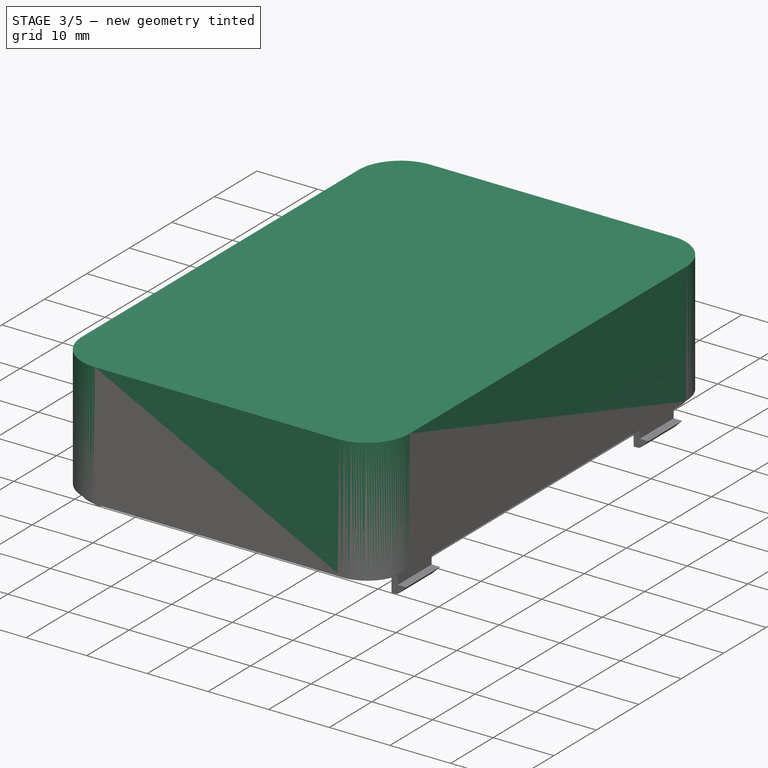
[diagram: stage 3 of 5 — iso view after this stage's code; geometry added in this stage tinted green]
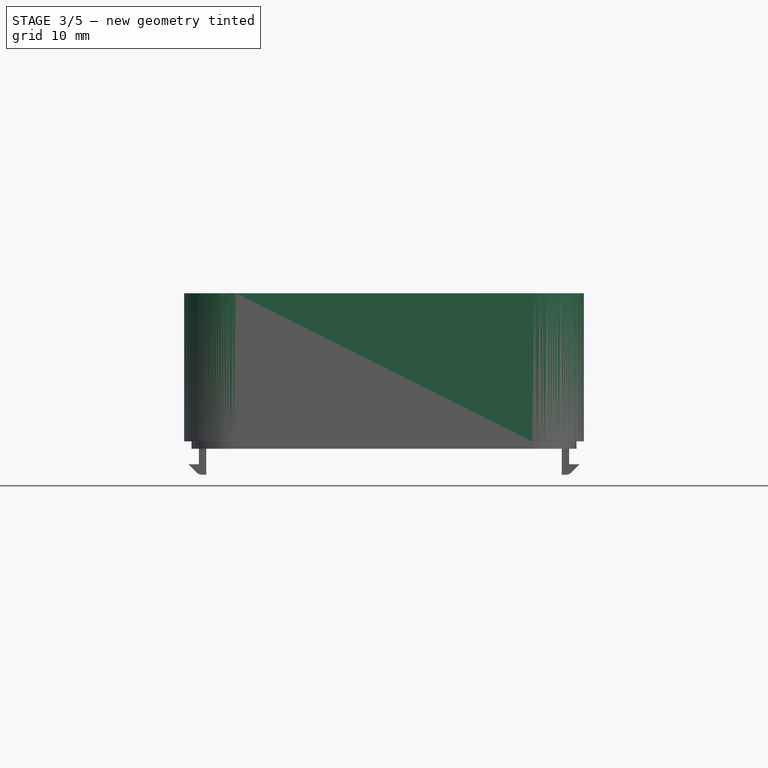
[diagram: stage 3 of 5 — front view after this stage's code; geometry added in this stage tinted green]
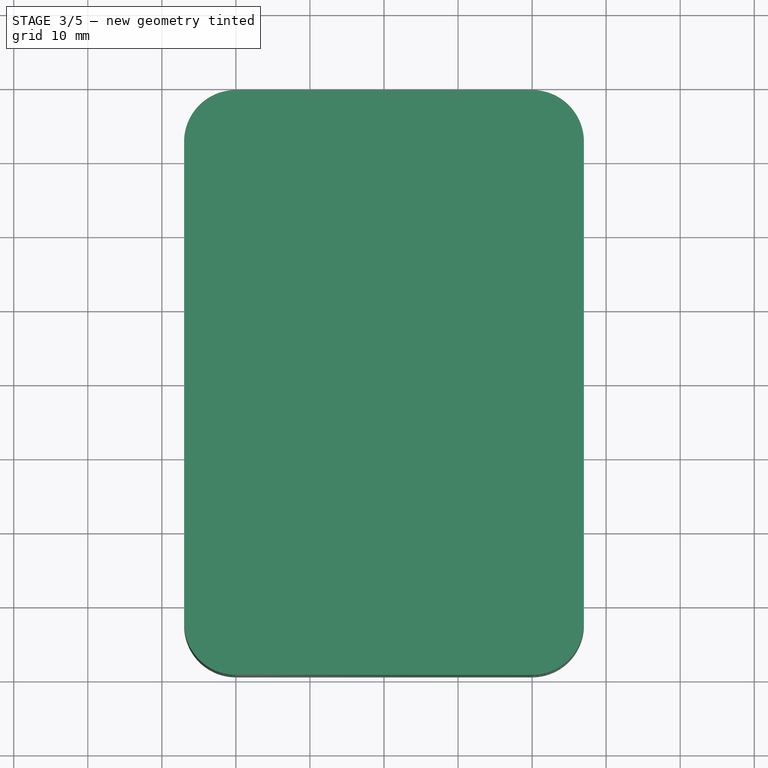
[diagram: stage 3 of 5 — top view after this stage's code; geometry added in this stage tinted green]
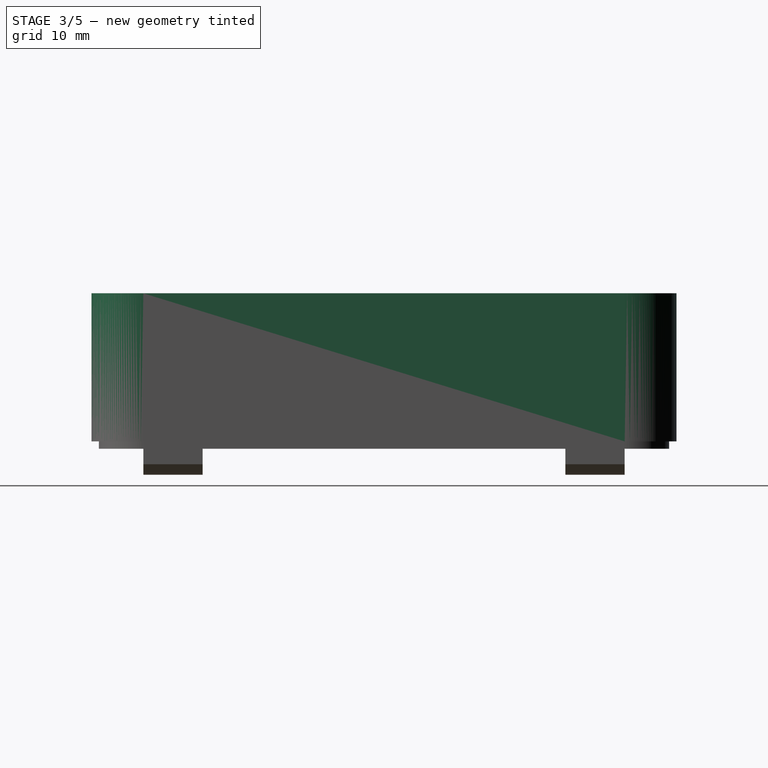
[diagram: stage 3 of 5 — right view after this stage's code; geometry added in this stage tinted green]
FEATURE [PartDesign::Body] Body
  AllowCompound = false
  Group = -> [Sketch,Pad]
  Origin = -> Origin
  Placement = pos=(0,0,2) rot=(0,0,1;0rad)
  Tip = -> Pad
FEATURE [Part::Offset2D] Offset2D
  Fill = false
  Intersection = false
  Join = 0
  Mode = 1
  SelfIntersection = false
  Source = -> Sketch
  Value = 2
FEATURE [Part::Extrusion] Extrude
  Base = -> Offset2D
  Dir = (0,0,1)
  DirMode = 2
  FaceMakerClass = Part::FaceMakerBullseye
  FaceMakerMode = 3
  LengthFwd = 20
  LengthRev = 0
  Solid = true
  Symmetric = false
FEATURE [PartDesign::FeatureBase] BaseFeature
  BaseFeature = -> Extrude
  Suppressed = false
FEATURE [Sketcher::SketchObject] Sketch010
  ArcFitTolerance = 1e-06
  AttachmentSupport = -> [BaseFeature005]
  ExternalGeometry = -> [BaseFeature005]
  FullyConstrained = true
  MakeInternals = false
  MapMode = 5
  Placement = pos=(0,0,0) rot=(1,0,0;3.14159rad)
  sketch-geometry (8):
    g0: LineSegment StartX=-20 StartY=38.5 StartZ=0 EndX=20 EndY=38.5 EndZ=0
    g1: LineSegment StartX=-26 StartY=32.5 StartZ=0 EndX=-26 EndY=-32.5 EndZ=0
    g2: LineSegment StartX=26 StartY=32.5 StartZ=0 EndX=26 EndY=-32.5 EndZ=0
    g3: LineSegment StartX=-20 StartY=-38.5 StartZ=0 EndX=20 EndY=-38.5 EndZ=0
    g4: ArcOfCircle CenterX=-20 CenterY=32.5 CenterZ=0 NormalX=0 NormalY=0 NormalZ=1 AngleXU=0 Radius=6 StartAngle=1.5708 EndAngle=3.14159
    g5: ArcOfCircle CenterX=20 CenterY=32.5 CenterZ=0 NormalX=0 NormalY=0 NormalZ=1 AngleXU=0 Radius=6 StartAngle=-9e-16 EndAngle=1.5708
    g6: ArcOfCircle CenterX=20 CenterY=-32.5 CenterZ=0 NormalX=0 NormalY=0 NormalZ=1 AngleXU=0 Radius=6 StartAngle=4.71239 EndAngle=6.28319
    g7: ArcOfCircle CenterX=-20 CenterY=-32.5 CenterZ=0 NormalX=0 NormalY=0 NormalZ=1 AngleXU=0 Radius=6 StartAngle=3.14159 EndAngle=4.71239
  constraints (26):
    c: Horizontal(g0)
    c: Vertical(g1)
    c: Vertical(g2)
    c: Horizontal(g3)
    c: Horizontal(g1,g-4)
    c: Horizontal(g-7,g2)
    c: Horizontal(g1,g-10)
    c: Horizontal(g-8,g2)
    c: Vertical(g3,g-10)
    c: Vertical(g3,g-9)
    c: Vertical(g-5,g0)
    c: Vertical(g0,g-6)
    c: DistanceX(g1,g-4) = 1
    c: DistanceX(g-7,g2) = 1
    c: DistanceY(g-5,g0) = 1
    c: DistanceY(g3,g-10) = 1
    c: Coincident(g4,g0)
    c: Block(g4)
    c: Coincident(g5,g-6)
    c: Coincident(g5,g0)
    c: Block(g5)
    c: Coincident(g6,g-8)
    c: Coincident(g6,g3)
    c: Block(g6)
    c: Coincident(g7,g1)
    c: Block(g7)
FEATURE [Part::Offset2D] Offset2D009
  Fill = false
  Intersection = false
  Join = 0
  Mode = 1
  SelfIntersection = false
  Source = -> Sketch010
  Value = -1
FEATURE [Part::Extrusion] Extrude009
  Base = -> Offset2D009
  Dir = (0,0,1)
  DirMode = 2
  FaceMakerClass = Part::FaceMakerBullseye
  FaceMakerMode = 3
  LengthFwd = -10
  LengthRev = 0
  Solid = true
  Symmetric = false
FEATURE [PartDesign::Body] Body005  label="Тело002"
  AllowCompound = false
  BaseFeature = -> Cut004
  Group = -> [BaseFeature005,Sketch010,Pad005]
  Origin = -> Origin005
  Tip = -> Pad005
FEATURE [Part::Cut] Cut005
  Base = -> Body005
  Tool = -> Extrude009
FEATURE [PartDesign::FeatureBase] BaseFeature006
  BaseFeature = -> Cut005
  Suppressed = false
FEATURE [PartDesign::Fillet] Fillet010
  Base = -> BaseFeature006 [Edge4]
  BaseFeature = -> BaseFeature006
  Radius = 3
  Refine = true
  SupportTransform = false
  Suppressed = false
  UseAllEdges = false
FEATURE [Sketcher::SketchObject] Sketch011
  ArcFitTolerance = 1e-06
  AttachmentSupport = -> [Fillet010]
  ExternalGeometry = -> [Fillet010]
  FullyConstrained = true
  MakeInternals = false
  MapMode = 5
  Placement = pos=(0,0,8) rot=(1,0,0;3.14159rad)
  sketch-geometry (16):
    g0: LineSegment StartX=-25 StartY=32.5 StartZ=0 EndX=-25 EndY=24.5 EndZ=0
    g1: LineSegment StartX=-25 StartY=24.5 StartZ=0 EndX=-24 EndY=24.5 EndZ=0
    g2: LineSegment StartX=-24 StartY=24.5 StartZ=0 EndX=-24 EndY=32.5 EndZ=0
    g3: LineSegment StartX=-24 StartY=32.5 StartZ=0 EndX=-25 EndY=32.5 EndZ=0
    g4: LineSegment StartX=25 StartY=32.5 StartZ=0 EndX=24 EndY=32.5 EndZ=0
    g5: LineSegment StartX=24 StartY=32.5 StartZ=0 EndX=24 EndY=24.5 EndZ=0
    g6: LineSegment StartX=24 StartY=24.5 StartZ=0 EndX=25 EndY=24.5 EndZ=0
    g7: LineSegment StartX=25 StartY=24.5 StartZ=0 EndX=25 EndY=32.5 EndZ=0
    g8: LineSegment StartX=-25 StartY=-32.5 StartZ=0 EndX=-24 EndY=-32.5 EndZ=0
    g9: LineSegment StartX=-24 StartY=-32.5 StartZ=0 EndX=-24 EndY=-24.5 EndZ=0
    g10: LineSegment StartX=-24 StartY=-24.5 StartZ=0 EndX=-25 EndY=-24.5 EndZ=0
    g11: LineSegment StartX=-25 StartY=-24.5 StartZ=0 EndX=-25 EndY=-32.5 EndZ=0
    g12: LineSegment StartX=25 StartY=-32.5 StartZ=0 EndX=25 EndY=-24.5 EndZ=0
    g13: LineSegment StartX=25 StartY=-24.5 StartZ=0 EndX=24 EndY=-24.5 EndZ=0
    g14: LineSegment StartX=24 StartY=-24.5 StartZ=0 EndX=24 EndY=-32.5 EndZ=0
    g15: LineSegment StartX=24 StartY=-32.5 StartZ=0 EndX=25 EndY=-32.5 EndZ=0
  constraints (44):
    c: Coincident(g0,g1)
    c: Coincident(g1,g2)
    c: Coincident(g2,g3)
    c: Coincident(g3,g0)
    c: Vertical(g0)
    c: Vertical(g2)
    c: Horizontal(g1)
    c: Horizontal(g3)
    c: Distance(g0,g2) = 1
    c: Distance(g1,g3) = 8
    c: Coincident(g0,g-4)
    c: Coincident(g4,g5)
    c: Coincident(g5,g6)
    c: Coincident(g6,g7)
    c: Coincident(g7,g4)
    c: Horizontal(g4)
    c: Horizontal(g6)
    c: Vertical(g5)
    c: Vertical(g7)
    c: Distance(g5,g7) = 1
    c: Distance(g4,g6) = 8
    c: Coincident(g4,g-7)
    c: Coincident(g8,g9)
    c: Coincident(g9,g10)
    c: Coincident(g10,g11)
    c: Coincident(g11,g8)
    c: Horizontal(g8)
    c: Horizontal(g10)
    c: Vertical(g9)
    c: Vertical(g11)
    c: Distance(g9,g11) = 1
    c: Distance(g8,g10) = 8
    c: Coincident(g8,g-8)
    c: Coincident(g12,g13)
    c: Coincident(g13,g14)
    c: Coincident(g14,g15)
    c: Coincident(g15,g12)
    c: Vertical(g12)
    c: Vertical(g14)
    c: Horizontal(g13)
    c: Horizontal(g15)
    c: Distance(g12,g14) = 1
    c: Distance(g13,g15) = 8
    c: Coincident(g12,g-10)
FEATURE [PartDesign::Pad] Pad006
  BaseFeature = -> Fillet010
  Direction = (0,0,-1)
  Length = 12.5
  Length2 = 10
  Profile = -> Sketch011
  ReferenceAxis = -> Sketch011 [N_Axis]
  Refine = true
  Suppressed = false
  Type = 0
FEATURE [Sketcher::SketchObject] Sketch012
  ArcFitTolerance = 1e-06
  AttachmentSupport = -> [Pad006]
  ExternalGeometry = -> [Pad006]
  FullyConstrained = true
  MakeInternals = false
  MapMode = 5
  Placement = pos=(0,32.5,0) rot=(0,0.707107,0.707107;3.14159rad)
  sketch-geometry (6):
    g0: LineSegment StartX=-25 StartY=-4.5 StartZ=0 EndX=-26.4142 EndY=-3.08579 EndZ=0
    g1: LineSegment StartX=-26.4142 StartY=-3.08579 StartZ=0 EndX=-25 EndY=-3.08579 EndZ=0
    g2: LineSegment StartX=-25 StartY=-3.08579 StartZ=0 EndX=-25 EndY=-4.5 EndZ=0
    g3: LineSegment StartX=25 StartY=-4.5 StartZ=0 EndX=26.4142 EndY=-3.08579 EndZ=0
    g4: LineSegment StartX=26.4142 StartY=-3.08579 StartZ=0 EndX=25 EndY=-3.08579 EndZ=0
    g5: LineSegment StartX=25 StartY=-3.08579 StartZ=0 EndX=25 EndY=-4.5 EndZ=0
  constraints (16):
    c: Distance(g0) = 2
    c: Angle(g-1,g0) = 2.35619
    c: Coincident(g0,g-3)
    c: Coincident(g1,g0)
    c: Horizontal(g1)
    c: Coincident(g2,g1)
    c: Coincident(g2,g0)
    c: Vertical(g2)
    c: Distance(g3) = 2
    c: Angle(g-1,g3) = 0.785398
    c: Coincident(g3,g-4)
    c: Coincident(g4,g3)
    c: Horizontal(g4)
    c: Coincident(g5,g4)
    c: Coincident(g5,g3)
    c: Vertical(g5)
FEATURE [PartDesign::Pad] Pad007
  BaseFeature = -> Pad006
  Direction = (0,1,-2e-16)
  Length = 8
  Length2 = 10
  Profile = -> Sketch012
  ReferenceAxis = -> Sketch012 [N_Axis]
  Refine = true
  Reversed = true
  Suppressed = false
  Type = 0
FEATURE [Sketcher::SketchObject] Sketch013
  ArcFitTolerance = 1e-06
  AttachmentSupport = -> [Pad007]
  ExternalGeometry = -> [Pad007]
  FullyConstrained = true
  MakeInternals = false
  MapMode = 5
  Placement = pos=(0,-32.5,0) rot=(1,0,0;1.5708rad)
  sketch-geometry (6):
    g0: LineSegment StartX=25 StartY=-4.5 StartZ=0 EndX=26.4142 EndY=-3.08579 EndZ=0
    g1: LineSegment StartX=26.4142 StartY=-3.08579 StartZ=0 EndX=25 EndY=-3.08579 EndZ=0
    g2: LineSegment StartX=25 StartY=-3.08579 StartZ=0 EndX=25 EndY=-4.5 EndZ=0
    g3: LineSegment StartX=-25 StartY=-4.5 StartZ=0 EndX=-26.4142 EndY=-3.08579 EndZ=0
    g4: LineSegment StartX=-26.4142 StartY=-3.08579 StartZ=0 EndX=-25 EndY=-3.08579 EndZ=0
    g5: LineSegment StartX=-25 StartY=-3.08579 StartZ=0 EndX=-25 EndY=-4.5 EndZ=0
  constraints (16):
    c: Distance(g0) = 2
    c: Angle(g-1,g0) = 0.785398
    c: Coincident(g0,g-3)
    c: Coincident(g1,g0)
    c: Horizontal(g1)
    c: Coincident(g2,g1)
    c: Coincident(g2,g0)
    c: Vertical(g2)
    c: Distance(g3) = 2
    c: Angle(g-1,g3) = 2.35619
    c: Coincident(g3,g-4)
    c: Coincident(g4,g3)
    c: Horizontal(g4)
    c: Coincident(g5,g4)
    c: Coincident(g5,g3)
    c: Vertical(g5)
FEATURE [PartDesign::Pad] Pad008
  BaseFeature = -> Pad007
  Direction = (0,-1,2e-16)
  Length = 8
  Length2 = 10
  Profile = -> Sketch013
  ReferenceAxis = -> Sketch013 [N_Axis]
  Refine = true
  Reversed = true
  Suppressed = false
  Type = 0
FEATURE [Sketcher::SketchObject] Sketch014
  ArcFitTolerance = 1e-06
  AttachmentSupport = -> [Pad008]
  ExternalGeometry = -> [Pad008]
  FullyConstrained = true
  MakeInternals = false
  MapMode = 5
  Placement = pos=(0,0,8) rot=(1,0,0;3.14159rad)
  sketch-geometry (20):
    g0: LineSegment StartX=-22.5 StartY=31.5 StartZ=0 EndX=-22.5 EndY=4.5 EndZ=0
    g1: LineSegment StartX=-18.5 StartY=0.5 StartZ=0 EndX=18.5 EndY=0.5 EndZ=0
    g2: LineSegment StartX=22.5 StartY=4.5 StartZ=0 EndX=22.5 EndY=31.5 EndZ=0
    g3: LineSegment StartX=18.5 StartY=35.5 StartZ=0 EndX=-18.5 EndY=35.5 EndZ=0
    g4: ArcOfCircle CenterX=-18.5 CenterY=31.5 CenterZ=0 NormalX=0 NormalY=0 NormalZ=1 AngleXU=0 Radius=4 StartAngle=1.5708 EndAngle=3.14159
    g5: GeomPoint [constr] X=-22.5 Y=35.5 Z=0
    g6: ArcOfCircle CenterX=18.5 CenterY=31.5 CenterZ=0 NormalX=0 NormalY=0 NormalZ=1 AngleXU=0 Radius=4 StartAngle=0 EndAngle=1.5708
    g7: GeomPoint [constr] X=22.5 Y=35.5 Z=0
    g8: ArcOfCircle CenterX=18.5 CenterY=4.5 CenterZ=0 NormalX=0 NormalY=0 NormalZ=1 AngleXU=0 Radius=4 StartAngle=4.71239 EndAngle=6.28319
    g9: GeomPoint [constr] X=22.5 Y=0.5 Z=0
    g10: ArcOfCircle CenterX=-18.5 CenterY=4.5 CenterZ=0 NormalX=0 NormalY=0 NormalZ=1 AngleXU=0 Radius=4 StartAngle=3.14159 EndAngle=4.71239
    g11: GeomPoint [constr] X=-22.5 Y=0.5 Z=0
    g12: LineSegment StartX=-18.5 StartY=33.5 StartZ=0 EndX=18.5 EndY=33.5 EndZ=0
    g13: LineSegment StartX=20.5 StartY=31.5 StartZ=0 EndX=20.5 EndY=4.5 EndZ=0
    g14: LineSegment StartX=18.5 StartY=2.5 StartZ=0 EndX=-18.5 EndY=2.5 EndZ=0
    g15: LineSegment StartX=-20.5 StartY=4.5 StartZ=0 EndX=-20.5 EndY=31.5 EndZ=0
    g16: ArcOfCircle CenterX=-18.5 CenterY=4.5 CenterZ=0 NormalX=0 NormalY=0 NormalZ=1 AngleXU=0 Radius=2 StartAngle=3.14159 EndAngle=4.71239
    g17: ArcOfCircle CenterX=18.5 CenterY=4.5 CenterZ=0 NormalX=0 NormalY=0 NormalZ=1 AngleXU=0 Radius=2 StartAngle=4.71239 EndAngle=6.28319
    g18: ArcOfCircle CenterX=18.5 CenterY=31.5 CenterZ=0 NormalX=0 NormalY=0 NormalZ=1 AngleXU=0 Radius=2 StartAngle=0 EndAngle=1.5708
    g19: ArcOfCircle CenterX=-17.6292 CenterY=30.6292 CenterZ=0 NormalX=0 NormalY=0 NormalZ=1 AngleXU=0 Radius=3 StartAngle=1.86531 EndAngle=2.84708
  constraints (52):
    c: Vertical(g0)
    c: Vertical(g2)
    c: Horizontal(g1)
    c: Distance(g5,g7) = 45
    c: Distance(g11,g5) = 35
    c: Symmetric(g5,g7,g-2)
    c: PointOnObject(g5,g0)
    c: PointOnObject(g5,g3)
    c: Tangent(g0,g4) = -1.5708
    c: Tangent(g3,g4) = -1.5708
    c: PointOnObject(g7,g2)
    c: PointOnObject(g7,g3)
    c: Tangent(g2,g6) = -1.5708
    c: Tangent(g3,g6) = -1.5708
    c: PointOnObject(g9,g1)
    c: PointOnObject(g9,g2)
    c: Tangent(g1,g8) = -1.5708
    c: Tangent(g2,g8) = -1.5708
    c: PointOnObject(g11,g0)
    c: PointOnObject(g11,g1)
    c: Tangent(g0,g10) = -1.5708
    c: Tangent(g1,g10) = -1.5708
    c: Equal(g4,g6)
    c: Equal(g4,g8)
    c: Equal(g4,g10)
    c: Radius(g4) = 4
    c: DistanceY(g3,g-3) = 2
    c: Horizontal(g12)
    c: Vertical(g13)
    c: Horizontal(g14)
    c: Vertical(g15)
    c: Horizontal(g15,g0)
    c: Horizontal(g13,g2)
    c: Horizontal(g15,g0)
    c: Horizontal(g13,g2)
    c: Vertical(g3,g12)
    c: Vertical(g14,g1)
    c: Vertical(g14,g1)
    c: Coincident(g16,g10)
    c: Coincident(g16,g15)
    c: Coincident(g16,g14)
    c: Coincident(g17,g8)
    c: Coincident(g17,g13)
    c: Coincident(g17,g14)
    c: Coincident(g18,g6)
    c: Coincident(g18,g12)
    c: Coincident(g18,g13)
    c: DistanceY(g12,g3) = 2
    c: Vertical(g12,g3)
    c: Coincident(g19,g12)
    c: Coincident(g19,g15)
    c: Radius(g19) = 3
FEATURE [PartDesign::Pocket] Pocket001
  BaseFeature = -> Pad008
  Direction = (0,0,1)
  Length = 1
  Length2 = 5
  Profile = -> Sketch014
  ReferenceAxis = -> Sketch014 [N_Axis]
  Refine = true
  Suppressed = false
  Type = 0
FEATURE [PartDesign::Fillet] Fillet011
  Base = -> Pocket001 [Edge188]
  BaseFeature = -> Pocket001
  Radius = 1
  Refine = true
  SupportTransform = false
  Suppressed = false
  UseAllEdges = false
FEATURE [PartDesign::Fillet] Fillet012
  Base = -> Fillet011 [Edge130]
  BaseFeature = -> Fillet011
  Radius = 1
  Refine = true
  SupportTransform = false
  Suppressed = false
  UseAllEdges = false
FEATURE [PartDesign::Fillet] Fillet013
  Base = -> Fillet012 [Edge135]
  BaseFeature = -> Fillet012
  Radius = 1
  Refine = true
  SupportTransform = false
  Suppressed = false
  UseAllEdges = false
FEATURE [PartDesign::Fillet] Fillet014
  Base = -> Fillet013 [Edge157]
  BaseFeature = -> Fillet013
  Radius = 1
  Refine = true
  SupportTransform = false
  Suppressed = false
  UseAllEdges = false
FEATURE [PartDesign::Fillet] Fillet015
  Base = -> Fillet014 [Edge29]
  BaseFeature = -> Fillet014
  Radius = 1
  Refine = true
  SupportTransform = false
  Suppressed = false
  UseAllEdges = false
FEATURE [PartDesign::Fillet] Fillet016
  Base = -> Fillet015 [Edge13]
  BaseFeature = -> Fillet015
  Radius = 1
  Refine = true
  SupportTransform = false
  Suppressed = false
  UseAllEdges = false
FEATURE [PartDesign::Fillet] Fillet017
  Base = -> Fillet016 [Edge24]
  BaseFeature = -> Fillet016
  Radius = 1
  Refine = true
  SupportTransform = false
  Suppressed = false
  UseAllEdges = false
FEATURE [PartDesign::Fillet] Fillet018
  Base = -> Fillet017 [Edge8]
  BaseFeature = -> Fillet017
  Radius = 1
  Refine = true
  SupportTransform = false
  Suppressed = false
  UseAllEdges = false
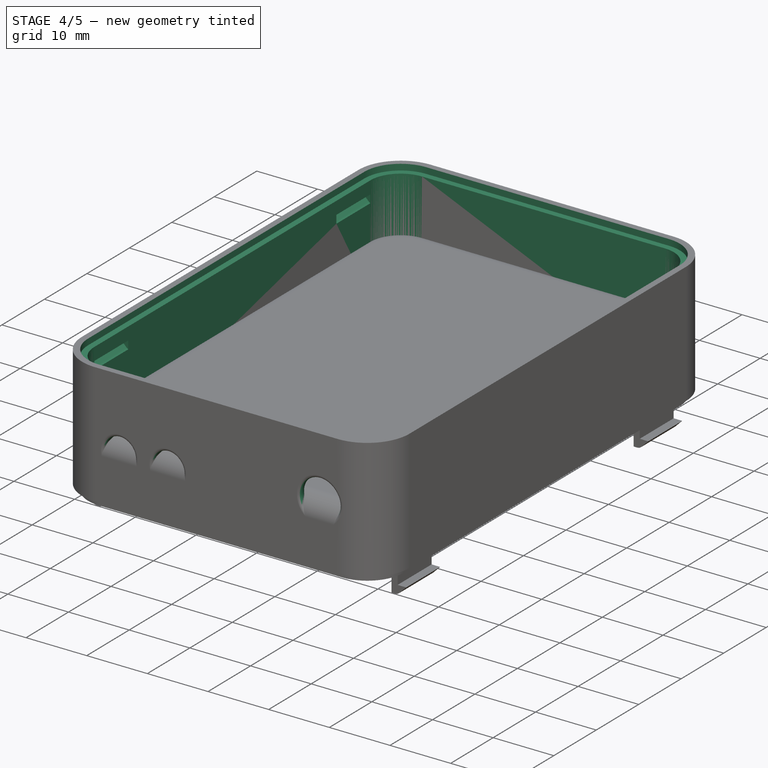
[diagram: stage 4 of 5 — iso view after this stage's code; geometry added in this stage tinted green]
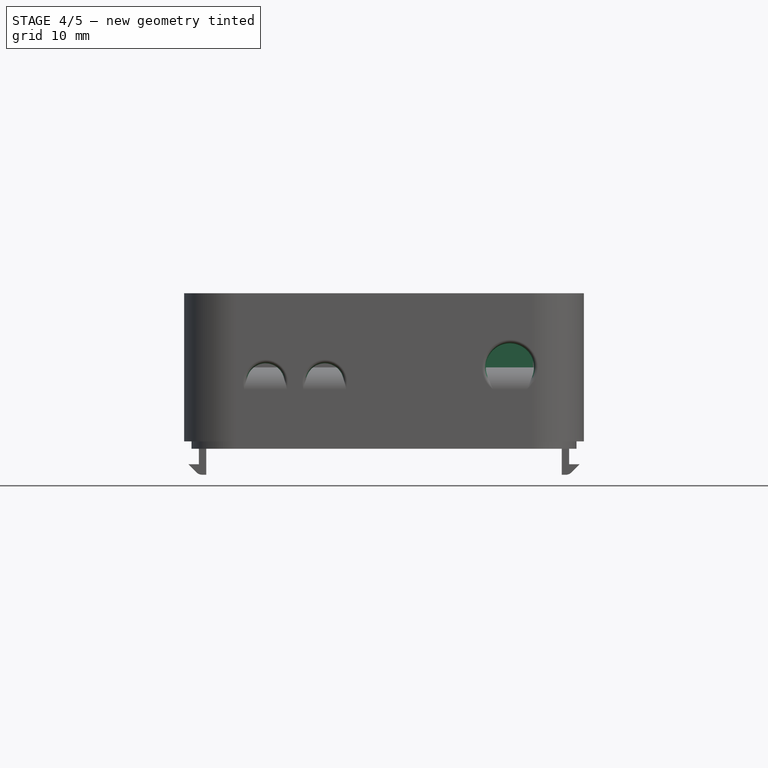
[diagram: stage 4 of 5 — front view after this stage's code; geometry added in this stage tinted green]
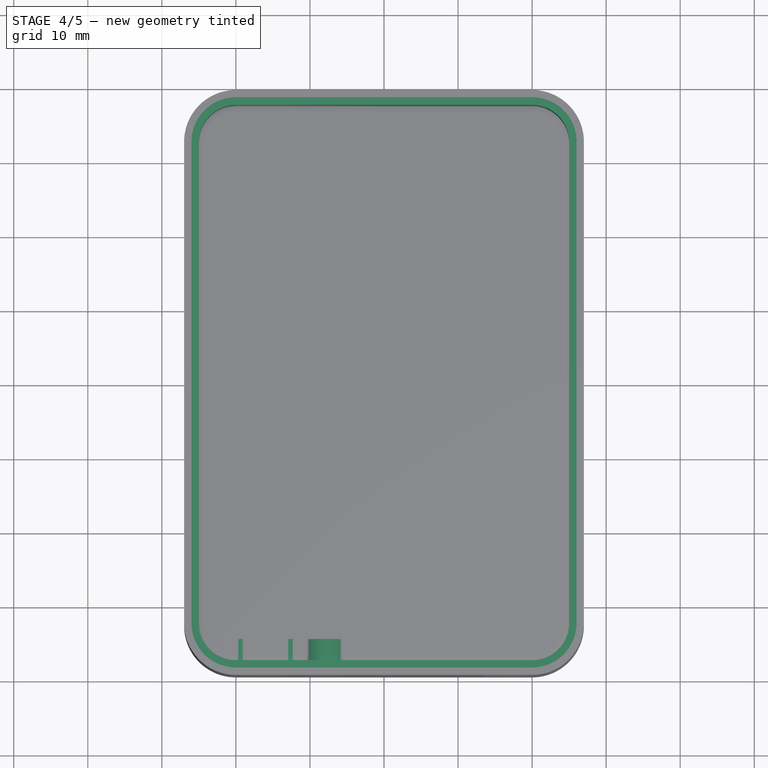
[diagram: stage 4 of 5 — top view after this stage's code; geometry added in this stage tinted green]
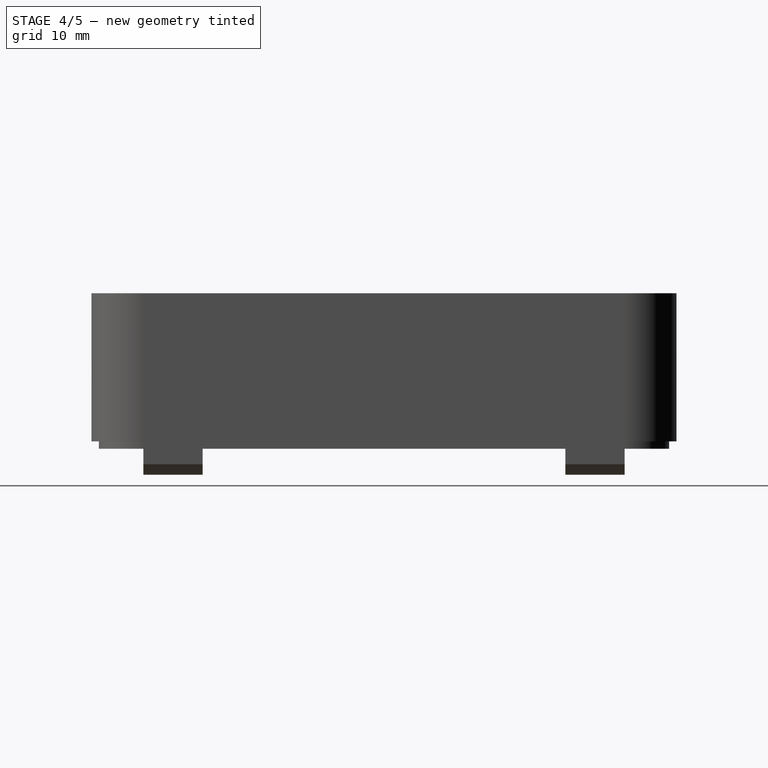
[diagram: stage 4 of 5 — right view after this stage's code; geometry added in this stage tinted green]
FEATURE [Sketcher::SketchObject] Sketch
  ArcFitTolerance = 1e-06
  AttachmentSupport = -> [XY_Plane]
  FullyConstrained = true
  MakeInternals = false
  MapMode = 5
  sketch-geometry (12):
    g0: LineSegment StartX=-25 StartY=32.5 StartZ=0 EndX=-25 EndY=-32.5 EndZ=0
    g1: LineSegment StartX=-20 StartY=-37.5 StartZ=0 EndX=20 EndY=-37.5 EndZ=0
    g2: LineSegment StartX=25 StartY=-32.5 StartZ=0 EndX=25 EndY=32.5 EndZ=0
    g3: LineSegment StartX=20 StartY=37.5 StartZ=0 EndX=-20 EndY=37.5 EndZ=0
    g4: ArcOfCircle CenterX=-20 CenterY=32.5 CenterZ=0 NormalX=0 NormalY=0 NormalZ=1 AngleXU=0 Radius=5 StartAngle=1.5708 EndAngle=3.14159
    g5: GeomPoint [constr] X=-25 Y=37.5 Z=0
    g6: ArcOfCircle CenterX=20 CenterY=32.5 CenterZ=0 NormalX=0 NormalY=0 NormalZ=1 AngleXU=0 Radius=5 StartAngle=-9e-16 EndAngle=1.5708
    g7: GeomPoint [constr] X=25 Y=37.5 Z=0
    g8: ArcOfCircle CenterX=-20 CenterY=-32.5 CenterZ=0 NormalX=0 NormalY=0 NormalZ=1 AngleXU=0 Radius=5 StartAngle=3.14159 EndAngle=4.71239
    g9: GeomPoint [constr] X=-25 Y=-37.5 Z=0
    g10: ArcOfCircle CenterX=20 CenterY=-32.5 CenterZ=0 NormalX=0 NormalY=0 NormalZ=1 AngleXU=0 Radius=5 StartAngle=4.71239 EndAngle=6.28319
    g11: GeomPoint [constr] X=25 Y=-37.5 Z=0
  constraints (27):
    c: Vertical(g0)
    c: Vertical(g2)
    c: Horizontal(g1)
    c: Horizontal(g3)
    c: Symmetric(g5,g11,g-1)
    c: DistanceX(g5,g7) = 50
    c: DistanceY(g9,g5) = 75
    c: PointOnObject(g5,g0)
    c: PointOnObject(g5,g3)
    c: Tangent(g0,g4) = -1.5708
    c: Tangent(g3,g4) = -1.5708
    c: PointOnObject(g7,g2)
    c: PointOnObject(g7,g3)
    c: Tangent(g2,g6) = -1.5708
    c: Tangent(g3,g6) = -1.5708
    c: PointOnObject(g9,g0)
    c: PointOnObject(g9,g1)
    c: Tangent(g0,g8) = -1.5708
    c: Tangent(g1,g8) = -1.5708
    c: PointOnObject(g11,g1)
    c: PointOnObject(g11,g2)
    c: Tangent(g1,g10) = -1.5708
    c: Tangent(g2,g10) = -1.5708
    c: Equal(g4,g6)
    c: Equal(g4,g8)
    c: Equal(g4,g10)
    c: Radius(g4) = 5
FEATURE [PartDesign::Pad] Pad
  Direction = (0,0,1)
  Length = 20
  Length2 = 10
  Profile = -> Sketch
  ReferenceAxis = -> Sketch [N_Axis]
  Refine = true
  Suppressed = false
  Type = 0
FEATURE [PartDesign::Body] Body001  label="Тело"
  AllowCompound = false
  BaseFeature = -> Extrude
  Group = -> [BaseFeature]
  Origin = -> Origin001
  Tip = -> BaseFeature
FEATURE [Part::Cut] Cut
  Base = -> Body001
  Tool = -> Body
FEATURE [PartDesign::FeatureBase] BaseFeature004
  BaseFeature = -> Cut
  Suppressed = false
FEATURE [PartDesign::Fillet] Fillet001
  Base = -> BaseFeature004 [Edge13]
  BaseFeature = -> BaseFeature004
  Radius = 3
  Refine = true
  SupportTransform = false
  Suppressed = false
  UseAllEdges = false
FEATURE [PartDesign::Body] Body006  label="Крышка001"
  AllowCompound = false
  BaseFeature = -> Cut005
  Group = -> [BaseFeature006,Fillet010,Sketch011,Pad006,Sketch012,Pad007,Sketch013,Pad008,Sketch014,Pocket001,Fillet011,Fillet012,Fillet013,Fillet014,Fillet015,Fillet016,Fillet017,Fillet018]
  Origin = -> Origin006
  Placement = pos=(0,0,20) rot=(0,0,1;0rad)
  Tip = -> Fillet018
FEATURE [Part::Cut] Cut006
  Base = -> Body004
  Tool = -> Body006
FEATURE [PartDesign::FeatureBase] BaseFeature007
  BaseFeature = -> Cut006
  Suppressed = false
FEATURE [Sketcher::SketchObject] Sketch015
  ArcFitTolerance = 1e-06
  AttachmentSupport = -> [BaseFeature007]
  ExternalGeometry = -> [BaseFeature007]
  FullyConstrained = true
  MakeInternals = false
  MapMode = 5
  Placement = pos=(0,-39.5,0) rot=(1,0,0;1.5708rad)
  sketch-geometry (3):
    g0: Circle CenterX=-16 CenterY=8 CenterZ=0 NormalX=0 NormalY=0 NormalZ=1 AngleXU=0 Radius=2.55
    g1: Circle CenterX=-8 CenterY=8 CenterZ=0 NormalX=0 NormalY=0 NormalZ=1 AngleXU=0 Radius=2.55
    g2: Circle CenterX=17 CenterY=10 CenterZ=0 NormalX=0 NormalY=0 NormalZ=1 AngleXU=0 Radius=3.25
  constraints (9):
    c: Diameter(g0) = 5.1
    c: Diameter(g1) = 5.1
    c: Horizontal(g0,g1)
    c: DistanceX(g0,g1) = 8
    c: DistanceX(g-4,g0) = 4
    c: DistanceY(g-4,g0) = 5
    c: Diameter(g2) = 6.5
    c: DistanceX(g2,g-5) = 10
    c: DistanceY(g-7,g2) = 10
FEATURE [PartDesign::Pocket] Pocket002
  BaseFeature = -> BaseFeature007
  Direction = (0,1,-2e-16)
  Length = 5
  Length2 = 5
  Profile = -> Sketch015
  ReferenceAxis = -> Sketch015 [N_Axis]
  Refine = true
  Suppressed = false
  Type = 0
FEATURE [PartDesign::Fillet] Fillet019
  Base = -> Pocket002 [Edge85]
  BaseFeature = -> Pocket002
  Radius = 1.4
  Refine = true
  SupportTransform = false
  Suppressed = false
  UseAllEdges = false
FEATURE [PartDesign::Fillet] Fillet020
  Base = -> Fillet019 [Edge5]
  BaseFeature = -> Fillet019
  Radius = 0.5
  Refine = true
  SupportTransform = false
  Suppressed = false
  UseAllEdges = false
FEATURE [PartDesign::Fillet] Fillet021
  Base = -> Fillet020 [Edge35,Edge36]
  BaseFeature = -> Fillet020
  Radius = 0.5
  Refine = true
  SupportTransform = false
  Suppressed = false
  UseAllEdges = false
FEATURE [Sketcher::SketchObject] Sketch016
  ArcFitTolerance = 1e-06
  AttachmentSupport = -> [Fillet021]
  ExternalGeometry = -> [Fillet021]
  FullyConstrained = true
  MakeInternals = false
  MapMode = 5
  Placement = pos=(0,-37.5,0) rot=(0,0.707107,0.707107;3.14159rad)
  sketch-geometry (2):
    g0: Circle CenterX=8 CenterY=8 CenterZ=0 NormalX=0 NormalY=0 NormalZ=1 AngleXU=0 Radius=3.05
    g1: Circle CenterX=8 CenterY=8 CenterZ=0 NormalX=0 NormalY=0 NormalZ=1 AngleXU=0 Radius=2.6
  constraints (4):
    c: Coincident(g0,g-3)
    c: Coincident(g1,g0)
    c: Diameter(g0) = 6.1
    c: Diameter(g1) = 5.2
FEATURE [PartDesign::Pad] Pad009
  BaseFeature = -> Fillet021
  Direction = (0,1,-2e-16)
  Length = 3
  Length2 = 10
  Profile = -> Sketch016
  ReferenceAxis = -> Sketch016 [N_Axis]
  Refine = true
  Suppressed = false
  Type = 0
FEATURE [Sketcher::SketchObject] Sketch017
  ArcFitTolerance = 1e-06
  AttachmentSupport = -> [Pad009]
  ExternalGeometry = -> [Pad009]
  FullyConstrained = true
  MakeInternals = false
  MapMode = 5
  Placement = pos=(0,-37.5,0) rot=(0,0.707107,0.707107;3.14159rad)
  sketch-geometry (8):
    g0: LineSegment StartX=12.925 StartY=11 StartZ=0 EndX=12.925 EndY=5 EndZ=0
    g1: LineSegment StartX=12.925 StartY=5 StartZ=0 EndX=12.325 EndY=5 EndZ=0
    g2: LineSegment StartX=12.325 StartY=5 StartZ=0 EndX=12.325 EndY=11 EndZ=0
    g3: LineSegment StartX=12.325 StartY=11 StartZ=0 EndX=12.925 EndY=11 EndZ=0
    g4: LineSegment StartX=19.075 StartY=11 StartZ=0 EndX=19.075 EndY=5 EndZ=0
    g5: LineSegment StartX=19.075 StartY=5 StartZ=0 EndX=19.675 EndY=5 EndZ=0
    g6: LineSegment StartX=19.675 StartY=5 StartZ=0 EndX=19.675 EndY=11 EndZ=0
    g7: LineSegment StartX=19.675 StartY=11 StartZ=0 EndX=19.075 EndY=11 EndZ=0
  constraints (23):
    c: Coincident(g0,g1)
    c: Coincident(g1,g2)
    c: Coincident(g2,g3)
    c: Coincident(g3,g0)
    c: Vertical(g0)
    c: Vertical(g2)
    c: Horizontal(g1)
    c: Horizontal(g3)
    c: Distance(g0,g2) = 0.6
    c: Distance(g1,g3) = 6
    c: Coincident(g4,g5)
    c: Coincident(g5,g6)
    c: Coincident(g6,g7)
    c: Coincident(g7,g4)
    c: Vertical(g4)
    c: Vertical(g6)
    c: Horizontal(g5)
    c: Horizontal(g7)
    c: Distance(g4,g6) = 0.6
    c: Distance(g5,g7) = 6
    c: Horizontal(g2,g4)
    c: DistanceX(g2,g4) = 6.75
    c: Symmetric(g4,g0,g-3)
FEATURE [PartDesign::Pad] Pad010
  BaseFeature = -> Pad009
  Direction = (0,1,-2e-16)
  Length = 3
  Length2 = 10
  Profile = -> Sketch017
  ReferenceAxis = -> Sketch017 [N_Axis]
  Refine = true
  Suppressed = false
  Type = 0
FEATURE [PartDesign::Fillet] Fillet022
  Base = -> Pad010 [Edge98]
  BaseFeature = -> Pad010
  Radius = 0.01
  Refine = true
  SupportTransform = false
  Suppressed = false
  UseAllEdges = false
FEATURE [PartDesign::Fillet] Fillet023
  Base = -> Fillet022 [Edge15]
  BaseFeature = -> Fillet022
  Radius = 0.2
  Refine = true
  SupportTransform = false
  Suppressed = false
  UseAllEdges = false
FEATURE [PartDesign::Fillet] Fillet024
  Base = -> Fillet023 [Edge19]
  BaseFeature = -> Fillet023
  Radius = 0.5
  Refine = true
  SupportTransform = false
  Suppressed = false
  UseAllEdges = false
FEATURE [Sketcher::SketchObject] Sketch018
  ArcFitTolerance = 1e-06
  AttachmentSupport = -> [Fillet024]
  ExternalGeometry = -> [Fillet024]
  FullyConstrained = true
  MakeInternals = false
  MapMode = 5
  Placement = pos=(0,0,2) rot=(0,0,1;0rad)
  sketch-geometry (4):
    g0: LineSegment StartX=13 StartY=-27.5 StartZ=0 EndX=13 EndY=-10.5 EndZ=0
    g1: LineSegment StartX=13 StartY=-10.5 StartZ=0 EndX=-13 EndY=-10.5 EndZ=0
    g2: LineSegment StartX=-13 StartY=-10.5 StartZ=0 EndX=-13 EndY=-27.5 EndZ=0
    g3: LineSegment StartX=-13 StartY=-27.5 StartZ=0 EndX=13 EndY=-27.5 EndZ=0
  constraints (11):
    c: Coincident(g0,g1)
    c: Coincident(g1,g2)
    c: Coincident(g2,g3)
    c: Coincident(g3,g0)
    c: Vertical(g0)
    c: Vertical(g2)
    c: Horizontal(g1)
    c: Distance(g0,g2) = 26
    c: Distance(g1,g3) = 17
    c: Symmetric(g0,g2,g-2)
    c: DistanceY(g-3,g0) = 10
FEATURE [PartDesign::Pocket] Pocket003
  BaseFeature = -> Fillet024
  Direction = (0,0,-1)
  Length = 5
  Length2 = 5
  Profile = -> Sketch018
  ReferenceAxis = -> Sketch018 [N_Axis]
  Refine = true
  Suppressed = false
  Type = 0
FEATURE [PartDesign::Fillet] Fillet025
  Base = -> Pocket003 [Edge123]
  BaseFeature = -> Pocket003
  Radius = 1
  Refine = true
  SupportTransform = false
  Suppressed = false
  UseAllEdges = false
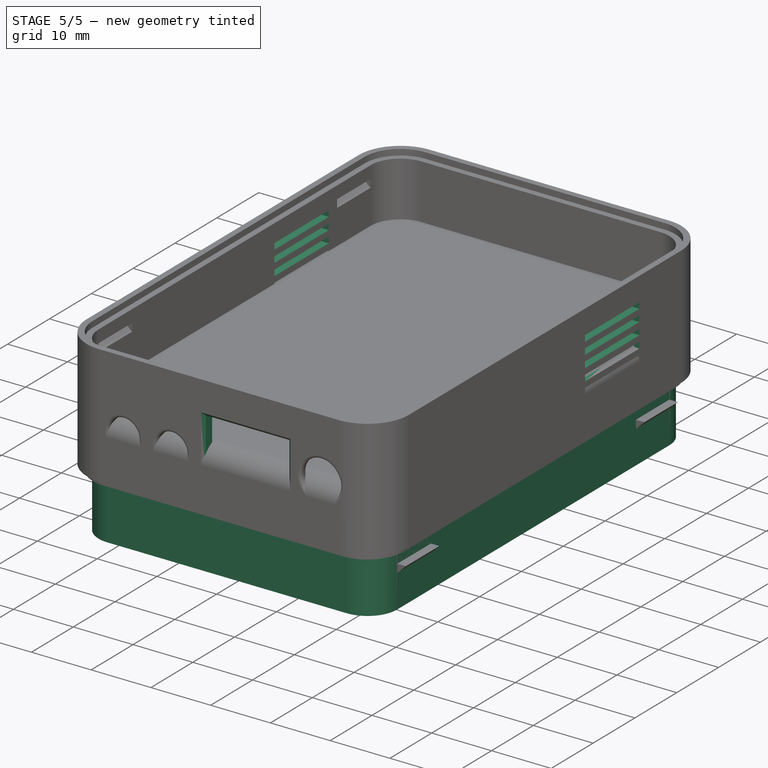
[diagram: stage 5 of 5 — iso view after this stage's code; geometry added in this stage tinted green]
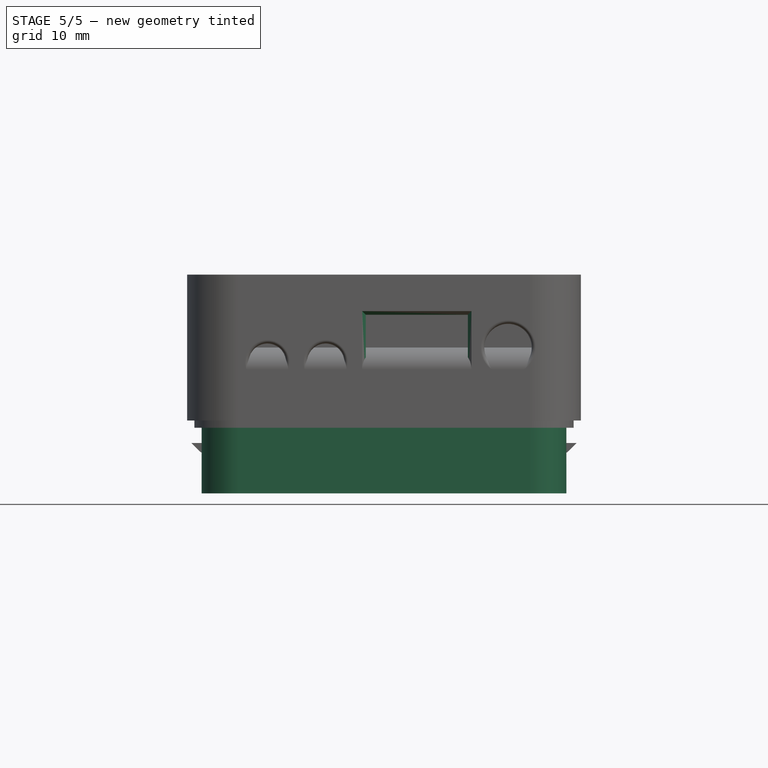
[diagram: stage 5 of 5 — front view after this stage's code; geometry added in this stage tinted green]
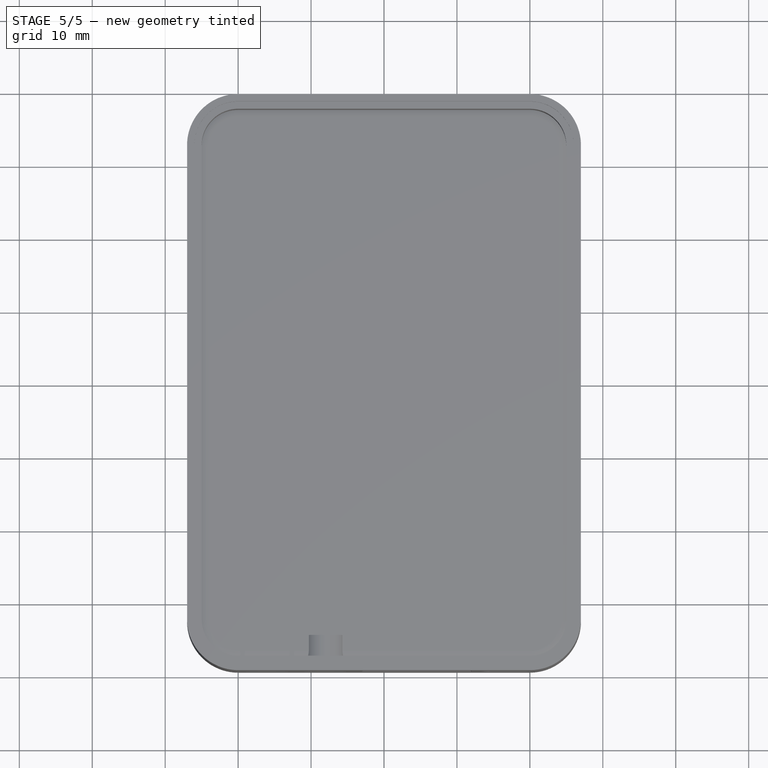
[diagram: stage 5 of 5 — top view after this stage's code; geometry added in this stage tinted green]
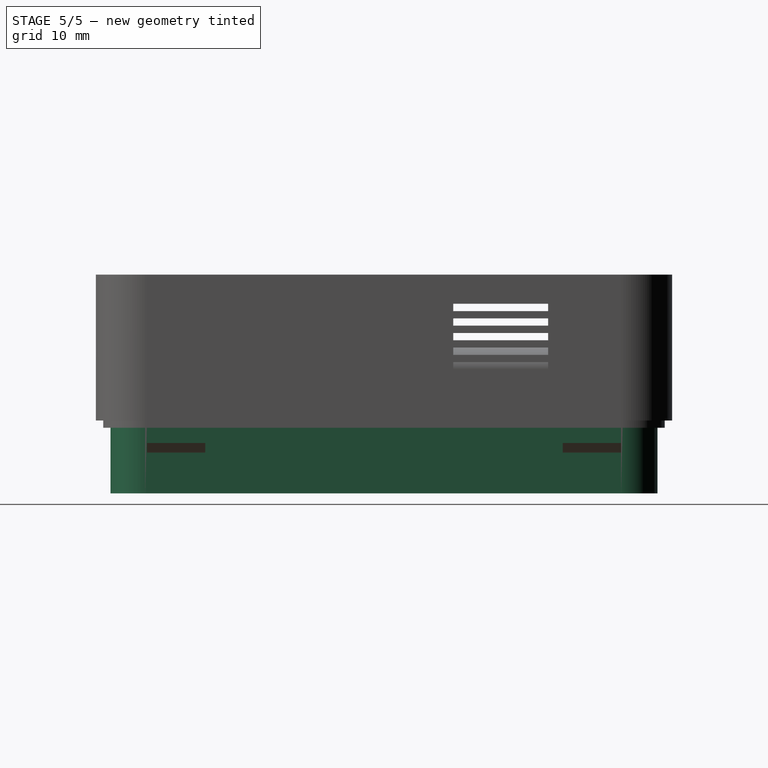
[diagram: stage 5 of 5 — right view after this stage's code; geometry added in this stage tinted green]
FEATURE [Sketcher::SketchObject] Sketch003
  ArcFitTolerance = 1e-06
  AttachmentSupport = -> [XY_Plane004]
  FullyConstrained = true
  MakeInternals = false
  MapMode = 5
  sketch-geometry (12):
    g0: LineSegment StartX=-25 StartY=32.5 StartZ=0 EndX=-25 EndY=-32.5 EndZ=0
    g1: LineSegment StartX=-20 StartY=-37.5 StartZ=0 EndX=20 EndY=-37.5 EndZ=0
    g2: LineSegment StartX=25 StartY=-32.5 StartZ=0 EndX=25 EndY=32.5 EndZ=0
    g3: LineSegment StartX=20 StartY=37.5 StartZ=0 EndX=-20 EndY=37.5 EndZ=0
    g4: ArcOfCircle CenterX=-20 CenterY=32.5 CenterZ=0 NormalX=0 NormalY=0 NormalZ=1 AngleXU=0 Radius=5 StartAngle=1.5708 EndAngle=3.14159
    g5: GeomPoint [constr] X=-25 Y=37.5 Z=0
    g6: ArcOfCircle CenterX=20 CenterY=32.5 CenterZ=0 NormalX=0 NormalY=0 NormalZ=1 AngleXU=0 Radius=5 StartAngle=-9e-16 EndAngle=1.5708
    g7: GeomPoint [constr] X=25 Y=37.5 Z=0
    g8: ArcOfCircle CenterX=-20 CenterY=-32.5 CenterZ=0 NormalX=0 NormalY=0 NormalZ=1 AngleXU=0 Radius=5 StartAngle=3.14159 EndAngle=4.71239
    g9: GeomPoint [constr] X=-25 Y=-37.5 Z=0
    g10: ArcOfCircle CenterX=20 CenterY=-32.5 CenterZ=0 NormalX=0 NormalY=0 NormalZ=1 AngleXU=0 Radius=5 StartAngle=4.71239 EndAngle=6.28319
    g11: GeomPoint [constr] X=25 Y=-37.5 Z=0
  constraints (27):
    c: Vertical(g0)
    c: Vertical(g2)
    c: Horizontal(g1)
    c: Horizontal(g3)
    c: Symmetric(g5,g11,g-1)
    c: DistanceX(g5,g7) = 50
    c: DistanceY(g9,g5) = 75
    c: PointOnObject(g5,g0)
    c: PointOnObject(g5,g3)
    c: Tangent(g0,g4) = -1.5708
    c: Tangent(g3,g4) = -1.5708
    c: PointOnObject(g7,g2)
    c: PointOnObject(g7,g3)
    c: Tangent(g2,g6) = -1.5708
    c: Tangent(g3,g6) = -1.5708
    c: PointOnObject(g9,g0)
    c: PointOnObject(g9,g1)
    c: Tangent(g0,g8) = -1.5708
    c: Tangent(g1,g8) = -1.5708
    c: PointOnObject(g11,g1)
    c: PointOnObject(g11,g2)
    c: Tangent(g1,g10) = -1.5708
    c: Tangent(g2,g10) = -1.5708
    c: Equal(g4,g6)
    c: Equal(g4,g8)
    c: Equal(g4,g10)
    c: Radius(g4) = 5
FEATURE [Part::Offset2D] Offset2D004
  Fill = false
  Intersection = false
  Join = 0
  Mode = 1
  SelfIntersection = false
  Source = -> Sketch003
  Value = 2
FEATURE [Part::Extrusion] Extrude004
  Base = -> Offset2D004
  Dir = (0,0,1)
  DirMode = 2
  FaceMakerClass = Part::FaceMakerBullseye
  FaceMakerMode = 3
  LengthFwd = 10
  LengthRev = 0
  Solid = true
  Symmetric = false
FEATURE [Part::Offset2D] Offset2D005
  Fill = false
  Intersection = false
  Join = 0
  Mode = 1
  SelfIntersection = false
  Source = -> Sketch003
  Value = 0
FEATURE [Part::Extrusion] Extrude005
  Base = -> Offset2D005
  Dir = (0,0,1)
  DirMode = 2
  FaceMakerClass = Part::FaceMakerBullseye
  FaceMakerMode = 3
  LengthFwd = 8
  LengthRev = 0
  Solid = true
  Symmetric = false
FEATURE [Part::Cut] Cut002
  Base = -> Extrude004
  Placement = pos=(0,0,20) rot=(0,0,1;0rad)
  Tool = -> Extrude005
FEATURE [PartDesign::FeatureBase] BaseFeature002
  BaseFeature = -> Cut002
  Suppressed = false
FEATURE [Sketcher::SketchObject] Sketch004
  ArcFitTolerance = 1e-06
  AttachmentSupport = -> [BaseFeature002]
  ExternalGeometry = -> [BaseFeature002]
  FullyConstrained = true
  MakeInternals = false
  MapMode = 5
  Placement = pos=(0,0,0) rot=(1,0,0;3.14159rad)
  sketch-geometry (8):
    g0: LineSegment StartX=-20 StartY=38.5 StartZ=0 EndX=20 EndY=38.5 EndZ=0
    g1: LineSegment StartX=-26 StartY=32.5 StartZ=0 EndX=-26 EndY=-32.5 EndZ=0
    g2: LineSegment StartX=26 StartY=32.5 StartZ=0 EndX=26 EndY=-32.5 EndZ=0
    g3: LineSegment StartX=-20 StartY=-38.5 StartZ=0 EndX=20 EndY=-38.5 EndZ=0
    g4: ArcOfCircle CenterX=-20 CenterY=32.5 CenterZ=0 NormalX=0 NormalY=0 NormalZ=1 AngleXU=0 Radius=6 StartAngle=1.5708 EndAngle=3.14159
    g5: ArcOfCircle CenterX=20 CenterY=32.5 CenterZ=0 NormalX=0 NormalY=0 NormalZ=1 AngleXU=0 Radius=6 StartAngle=-9e-16 EndAngle=1.5708
    g6: ArcOfCircle CenterX=20 CenterY=-32.5 CenterZ=0 NormalX=0 NormalY=0 NormalZ=1 AngleXU=0 Radius=6 StartAngle=4.71239 EndAngle=6.28319
    g7: ArcOfCircle CenterX=-20 CenterY=-32.5 CenterZ=0 NormalX=0 NormalY=0 NormalZ=1 AngleXU=0 Radius=6 StartAngle=3.14159 EndAngle=4.71239
  constraints (26):
    c: Horizontal(g0)
    c: Vertical(g1)
    c: Vertical(g2)
    c: Horizontal(g3)
    c: Horizontal(g1,g-4)
    c: Horizontal(g-7,g2)
    c: Horizontal(g1,g-10)
    c: Horizontal(g-8,g2)
    c: Vertical(g3,g-10)
    c: Vertical(g3,g-9)
    c: Vertical(g-5,g0)
    c: Vertical(g0,g-6)
    c: DistanceX(g1,g-4) = 1
    c: DistanceX(g-7,g2) = 1
    c: DistanceY(g-5,g0) = 1
    c: DistanceY(g3,g-10) = 1
    c: Coincident(g4,g0)
    c: Block(g4)
    c: Coincident(g5,g-6)
    c: Coincident(g5,g0)
    c: Block(g5)
    c: Coincident(g6,g-8)
    c: Coincident(g6,g3)
    c: Block(g6)
    c: Coincident(g7,g1)
    c: Block(g7)
FEATURE [Part::Offset2D] Offset2D006
  Fill = false
  Intersection = false
  Join = 0
  Mode = 1
  SelfIntersection = false
  Source = -> Sketch004
  Value = -1
FEATURE [Part::Extrusion] Extrude006
  Base = -> Offset2D006
  Dir = (0,0,1)
  DirMode = 2
  FaceMakerClass = Part::FaceMakerBullseye
  FaceMakerMode = 3
  LengthFwd = -10
  LengthRev = 0
  Solid = true
  Symmetric = false
FEATURE [PartDesign::Fillet] Fillet026
  Base = -> Fillet025 [Edge23,Edge24,Edge6]
  BaseFeature = -> Fillet025
  Radius = 1
  Refine = true
  SupportTransform = false
  Suppressed = false
  UseAllEdges = false
FEATURE [Sketcher::SketchObject] Sketch019
  ArcFitTolerance = 1e-06
  AttachmentSupport = -> [Fillet026]
  ExternalGeometry = -> [Fillet026]
  FullyConstrained = true
  MakeInternals = false
  MapMode = 5
  Placement = pos=(0,-39.5,0) rot=(1,0,0;1.5708rad)
  sketch-geometry (4):
    g0: LineSegment StartX=-2.5 StartY=14.5 StartZ=0 EndX=-2.5 EndY=5 EndZ=0
    g1: LineSegment StartX=-2.5 StartY=5 StartZ=0 EndX=11.5 EndY=5 EndZ=0
    g2: LineSegment StartX=11.5 StartY=5 StartZ=0 EndX=11.5 EndY=14.5 EndZ=0
    g3: LineSegment StartX=11.5 StartY=14.5 StartZ=0 EndX=-2.5 EndY=14.5 EndZ=0
  constraints (12):
    c: Coincident(g0,g1)
    c: Coincident(g1,g2)
    c: Coincident(g2,g3)
    c: Coincident(g3,g0)
    c: Vertical(g0)
    c: Vertical(g2)
    c: Horizontal(g1)
    c: Horizontal(g3)
    c: Distance(g0,g2) = 14
    c: Distance(g1,g3) = 9.5
    c: DistanceY(g-3,g1) = 2
    c: DistanceX(g1,g-3) = 8.5
FEATURE [PartDesign::Fillet] Fillet027
  Base = -> Fillet026 [Edge61]
  BaseFeature = -> Fillet026
  Radius = 0.2
  Refine = true
  SupportTransform = false
  Suppressed = false
  UseAllEdges = false
FEATURE [PartDesign::Pocket] Pocket004
  BaseFeature = -> Fillet027
  Direction = (0,1,-2e-16)
  Length = 5
  Length2 = 5
  Profile = -> Sketch019
  ReferenceAxis = -> Sketch019 [N_Axis]
  Refine = true
  Suppressed = false
  Type = 0
FEATURE [PartDesign::Chamfer] Chamfer
  Angle = 45
  Base = -> Pocket004 [Edge65,Edge67,Edge63,Edge60]
  BaseFeature = -> Pocket004
  ChamferType = 0
  FlipDirection = false
  Refine = true
  Size = 0.5
  Size2 = 1
  SupportTransform = false
  Suppressed = false
  UseAllEdges = false
FEATURE [Sketcher::SketchObject] Sketch021
  ArcFitTolerance = 1e-06
  AttachmentSupport = -> [Chamfer]
  ExternalGeometry = -> [Chamfer]
  FullyConstrained = true
  MakeInternals = false
  MapMode = 5
  Placement = pos=(27,0,0) rot=(0.57735,0.57735,0.57735;2.0944rad)
  sketch-geometry (20):
    g0: LineSegment StartX=9.5 StartY=14 StartZ=0 EndX=9.5 EndY=13 EndZ=0
    g1: LineSegment StartX=9.5 StartY=13 StartZ=0 EndX=22.5 EndY=13 EndZ=0
    g2: LineSegment StartX=22.5 StartY=13 StartZ=0 EndX=22.5 EndY=14 EndZ=0
    g3: LineSegment StartX=22.5 StartY=14 StartZ=0 EndX=9.5 EndY=14 EndZ=0
    g4: LineSegment StartX=9.5 StartY=12 StartZ=0 EndX=9.5 EndY=11 EndZ=0
    g5: LineSegment StartX=9.5 StartY=11 StartZ=0 EndX=22.5 EndY=11 EndZ=0
    g6: LineSegment StartX=22.5 StartY=11 StartZ=0 EndX=22.5 EndY=12 EndZ=0
    g7: LineSegment StartX=22.5 StartY=12 StartZ=0 EndX=9.5 EndY=12 EndZ=0
    g8: LineSegment StartX=9.5 StartY=10 StartZ=0 EndX=9.5 EndY=9 EndZ=0
    g9: LineSegment StartX=9.5 StartY=9 StartZ=0 EndX=22.5 EndY=9 EndZ=0
    g10: LineSegment StartX=22.5 StartY=9 StartZ=0 EndX=22.5 EndY=10 EndZ=0
    g11: LineSegment StartX=22.5 StartY=10 StartZ=0 EndX=9.5 EndY=10 EndZ=0
    g12: LineSegment StartX=9.5 StartY=8 StartZ=0 EndX=9.5 EndY=7 EndZ=0
    g13: LineSegment StartX=9.5 StartY=7 StartZ=0 EndX=22.5 EndY=7 EndZ=0
    g14: LineSegment StartX=22.5 StartY=7 StartZ=0 EndX=22.5 EndY=8 EndZ=0
    g15: LineSegment StartX=22.5 StartY=8 StartZ=0 EndX=9.5 EndY=8 EndZ=0
    g16: LineSegment StartX=9.5 StartY=16 StartZ=0 EndX=9.5 EndY=15 EndZ=0
    g17: LineSegment StartX=9.5 StartY=15 StartZ=0 EndX=22.5 EndY=15 EndZ=0
    g18: LineSegment StartX=22.5 StartY=15 StartZ=0 EndX=22.5 EndY=16 EndZ=0
    g19: LineSegment StartX=22.5 StartY=16 StartZ=0 EndX=9.5 EndY=16 EndZ=0
  constraints (60):
    c: Coincident(g0,g1)
    c: Coincident(g1,g2)
    c: Coincident(g2,g3)
    c: Coincident(g3,g0)
    c: Vertical(g0)
    c: Vertical(g2)
    c: Horizontal(g1)
    c: Horizontal(g3)
    c: Distance(g0,g2) = 13
    c: Distance(g1,g3) = 1
    c: Coincident(g4,g5)
    c: Coincident(g5,g6)
    c: Coincident(g6,g7)
    c: Coincident(g7,g4)
    c: Vertical(g4)
    c: Vertical(g6)
    c: Horizontal(g5)
    c: Horizontal(g7)
    c: Distance(g4,g6) = 13
    c: Distance(g5,g7) = 1
    c: Coincident(g8,g9)
    c: Coincident(g9,g10)
    c: Coincident(g10,g11)
    c: Coincident(g11,g8)
    c: Vertical(g8)
    c: Vertical(g10)
    c: Horizontal(g9)
    c: Horizontal(g11)
    c: Distance(g8,g10) = 13
    c: Distance(g9,g11) = 1
    c: Coincident(g12,g13)
    c: Coincident(g13,g14)
    c: Coincident(g14,g15)
    c: Coincident(g15,g12)
    c: Vertical(g12)
    c: Vertical(g14)
    c: Horizontal(g13)
    c: Horizontal(g15)
    c: Distance(g12,g14) = 13
    c: Distance(g13,g15) = 1
    c: Coincident(g16,g17)
    c: Coincident(g17,g18)
    c: Coincident(g18,g19)
    c: Coincident(g19,g16)
    c: Vertical(g16)
    c: Vertical(g18)
    c: Horizontal(g17)
    c: Horizontal(g19)
    c: Distance(g16,g18) = 13
    c: Distance(g17,g19) = 1
    c: Vertical(g18,g2)
    c: Vertical(g2,g6)
    c: Vertical(g6,g10)
    c: Vertical(g10,g14)
    c: DistanceY(g0,g16) = 1
    c: DistanceY(g6,g1) = 1
    c: DistanceY(g8,g4) = 1
    c: DistanceY(g14,g9) = 1
    c: DistanceY(g-4,g13) = 4
    c: DistanceX(g13,g-4) = 10
FEATURE [PartDesign::Pocket] Pocket006
  BaseFeature = -> Chamfer
  Direction = (-1,0,0)
  Length = 150
  Length2 = 5
  Profile = -> Sketch021
  ReferenceAxis = -> Sketch021 [N_Axis]
  Refine = true
  Suppressed = false
  Type = 0
FEATURE [Sketcher::SketchObject] Sketch022
  ArcFitTolerance = 1e-06
  AttachmentSupport = -> [Pocket006]
  FullyConstrained = true
  MakeInternals = false
  MapMode = 5
  Placement = pos=(0,0,0) rot=(1,0,0;3.14159rad)
  sketch-geometry (6):
    g0: Circle CenterX=-8.5 CenterY=-17.7224 CenterZ=0 NormalX=0 NormalY=0 NormalZ=1 AngleXU=0 Radius=6.5
    g1: Circle CenterX=8.5 CenterY=-17.7224 CenterZ=0 NormalX=0 NormalY=0 NormalZ=1 AngleXU=0 Radius=6.5
    g2: Circle CenterX=0 CenterY=-3 CenterZ=0 NormalX=0 NormalY=0 NormalZ=1 AngleXU=0 Radius=6.5
    g3: LineSegment [constr] StartX=0 StartY=-3 StartZ=0 EndX=-8.5 EndY=-17.7224 EndZ=0
    g4: LineSegment [constr] StartX=-8.5 StartY=-17.7224 StartZ=0 EndX=8.5 EndY=-17.7224 EndZ=0
    g5: LineSegment [constr] StartX=8.5 StartY=-17.7224 StartZ=0 EndX=1e-16 EndY=-3 EndZ=0
  constraints (15):
    c: Equal(g0,g1)
    c: Equal(g1,g2)
    c: Diameter(g0) = 13
    c: Coincident(g3,g2)
    c: Coincident(g3,g0)
    c: Coincident(g4,g0)
    c: Coincident(g4,g1)
    c: Horizontal(g4)
    c: Coincident(g5,g1)
    c: Coincident(g5,g2)
    c: Equal(g5,g3)
    c: Equal(g3,g4)
    c: DistanceY(g2,g-1) = 3
    c: Vertical(g-1,g2)
    c: DistanceX(g0,g1) = 17
FEATURE [PartDesign::Pocket] Pocket007
  BaseFeature = -> Pocket006
  Direction = (0,0,1)
  Length = 5
  Length2 = 5
  Profile = -> Sketch022
  ReferenceAxis = -> Sketch022 [N_Axis]
  Refine = true
  Suppressed = false
  Type = 0
FEATURE [PartDesign::Fillet] Fillet028
  Base = -> Pocket007 [Edge221,Edge225,Edge223]
  BaseFeature = -> Pocket007
  Radius = 1
  Refine = true
  SupportTransform = false
  Suppressed = false
  UseAllEdges = false
FEATURE [Sketcher::SketchObject] Sketch023
  ArcFitTolerance = 1e-06
  AttachmentSupport = -> [Fillet028]
  ExternalGeometry = -> [Fillet028]
  FullyConstrained = true
  MakeInternals = false
  MapMode = 5
  Placement = pos=(0,0,2) rot=(0,0,1;0rad)
  sketch-geometry (3):
    g0: Circle CenterX=-8.5 CenterY=17.7224 CenterZ=0 NormalX=0 NormalY=0 NormalZ=1 AngleXU=0 Radius=8
    g1: Circle CenterX=8.5 CenterY=17.7224 CenterZ=0 NormalX=0 NormalY=0 NormalZ=1 AngleXU=0 Radius=8
    g2: Circle CenterX=0 CenterY=3 CenterZ=0 NormalX=0 NormalY=0 NormalZ=1 AngleXU=0 Radius=8
  constraints (6):
    c: Diameter(g0) = 16
    c: Coincident(g0,g-3)
    c: Diameter(g1) = 16
    c: Coincident(g1,g-4)
    c: Diameter(g2) = 16
    c: Coincident(g2,g-5)
FEATURE [PartDesign::Pocket] Pocket008
  BaseFeature = -> Fillet028
  Direction = (0,0,-1)
  Length = 1
  Length2 = 5
  Profile = -> Sketch023
  ReferenceAxis = -> Sketch023 [N_Axis]
  Refine = true
  Suppressed = false
  Type = 0
FEATURE [Sketcher::SketchObject] Sketch024
  ArcFitTolerance = 1e-06
  AttachmentSupport = -> [Pocket008]
  ExternalGeometry = -> [Pocket008]
  FullyConstrained = true
  MakeInternals = false
  MapMode = 5
  Placement = pos=(0,0,2) rot=(0,0,1;0rad)
  sketch-geometry (1):
    g0: Circle CenterX=-19 CenterY=-29.5 CenterZ=0 NormalX=0 NormalY=0 NormalZ=1 AngleXU=0 Radius=0.75
  constraints (3):
    c: Diameter(g0) = 1.5
    c: DistanceX(g0,g-3) = 6
    c: DistanceY(g0,g-3) = 2
FEATURE [PartDesign::Pocket] Pocket009
  BaseFeature = -> Pocket008
  Direction = (0,0,-1)
  Length = 5
  Length2 = 5
  Profile = -> Sketch024
  ReferenceAxis = -> Sketch024 [N_Axis]
  Refine = true
  Suppressed = false
  Type = 0
FEATURE [PartDesign::Fillet] Fillet029
  Base = -> Pocket009 [Edge13]
  BaseFeature = -> Pocket009
  Radius = 0.5
  Refine = true
  SupportTransform = false
  Suppressed = false
  UseAllEdges = false
FEATURE [PartDesign::Fillet] Fillet030
  Base = -> Fillet029 [Edge50]
  BaseFeature = -> Fillet029
  Radius = 1
  Refine = true
  SupportTransform = false
  Suppressed = false
  UseAllEdges = false
FEATURE [Sketcher::SketchObject] Sketch025
  ArcFitTolerance = 1e-06
  AttachmentSupport = -> [Fillet030]
  ExternalGeometry = -> [Fillet030]
  FullyConstrained = true
  MakeInternals = false
  MapMode = 5
  Placement = pos=(0,0,2) rot=(0,0,1;0rad)
  sketch-geometry (2):
    g0: Circle CenterX=-19 CenterY=-29.5 CenterZ=0 NormalX=0 NormalY=0 NormalZ=1 AngleXU=0 Radius=2.55
    g1: Circle CenterX=-19 CenterY=-29.5 CenterZ=0 NormalX=0 NormalY=0 NormalZ=1 AngleXU=0 Radius=3
  constraints (4):
    c: Diameter(g0) = 5.1
    c: Coincident(g0,g-3)
    c: Diameter(g1) = 6
    c: Coincident(g1,g0)
FEATURE [PartDesign::Pad] Pad011
  BaseFeature = -> Fillet030
  Direction = (0,0,1)
  Length = 3
  Length2 = 10
  Profile = -> Sketch025
  ReferenceAxis = -> Sketch025 [N_Axis]
  Refine = true
  Suppressed = false
  Type = 0
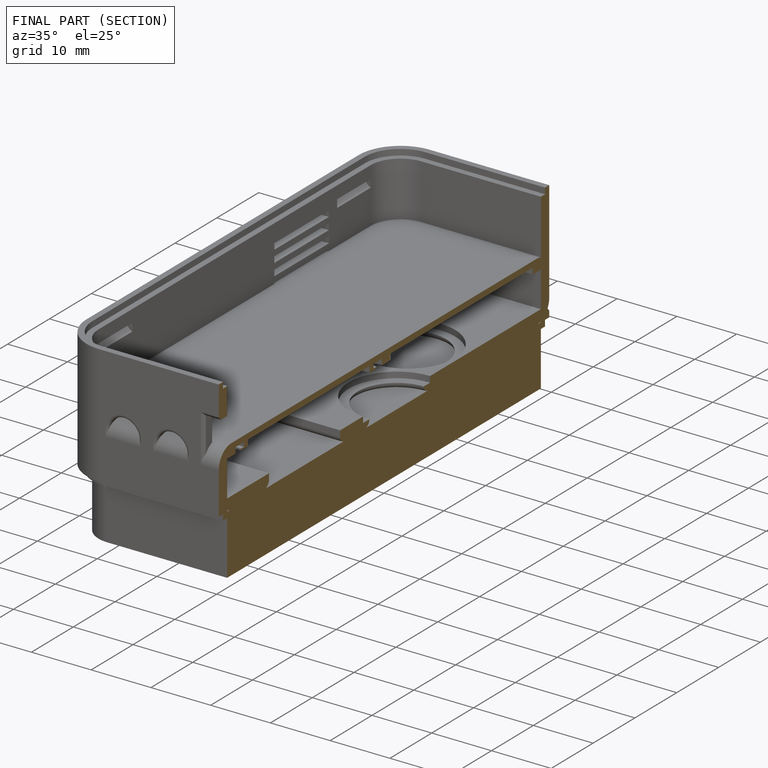
[diagram: finished part — half-section view (interior)]
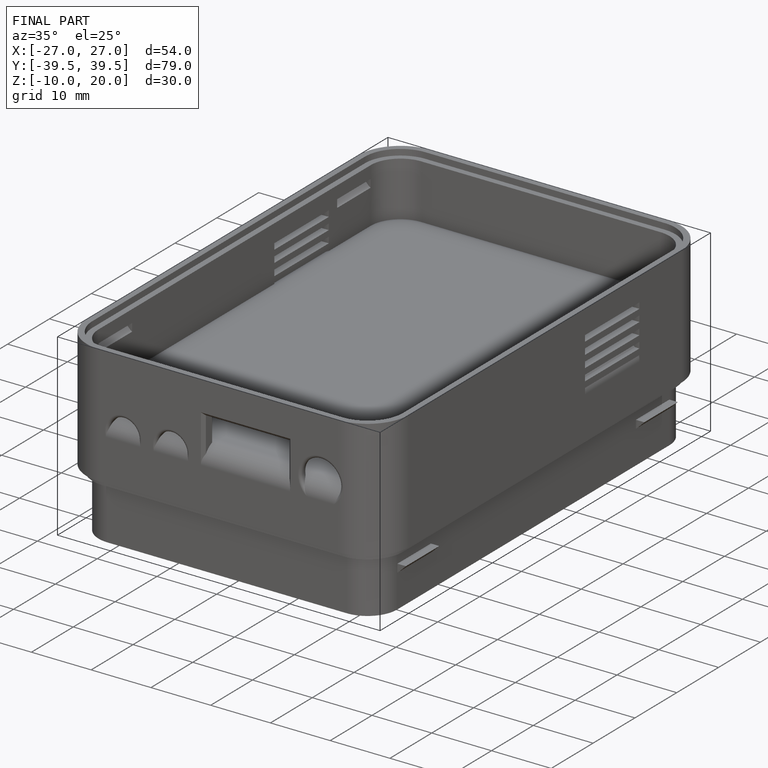
[diagram: finished part — iso view with bounding-box wireframe]
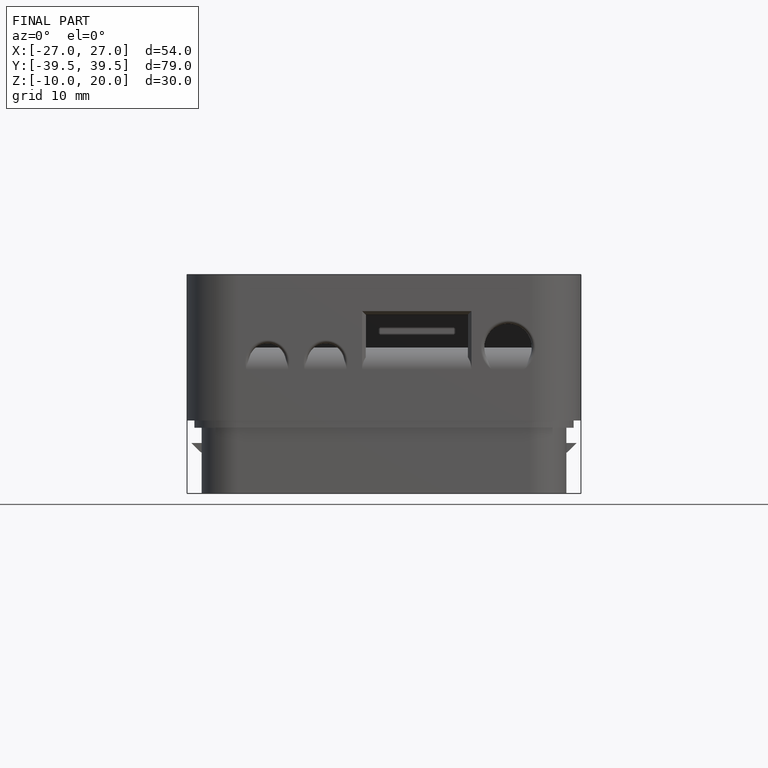
[diagram: finished part — front view with bounding-box wireframe]
